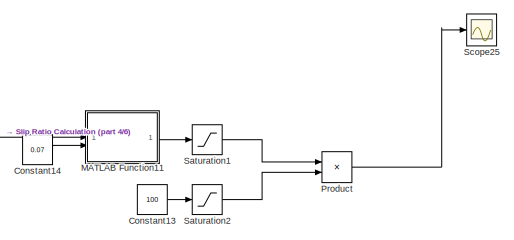
[diagram: root canvas - part 1/6, top right region]
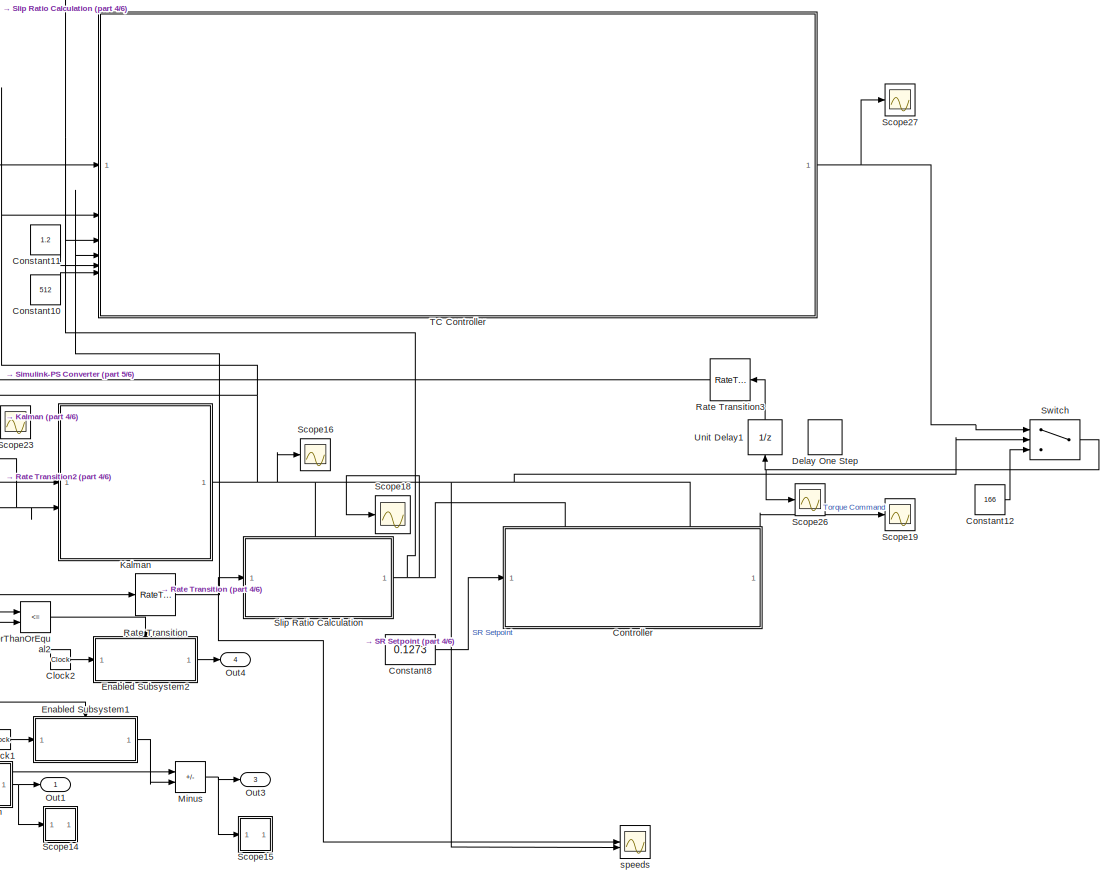
[diagram: root canvas - part 2/6, middle right region]
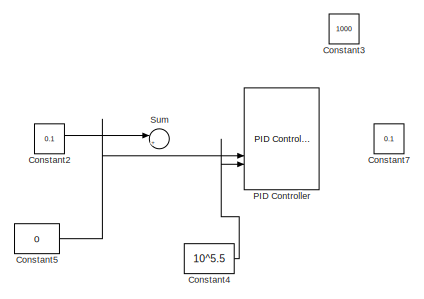
[diagram: root canvas - part 3/6, middle left region]
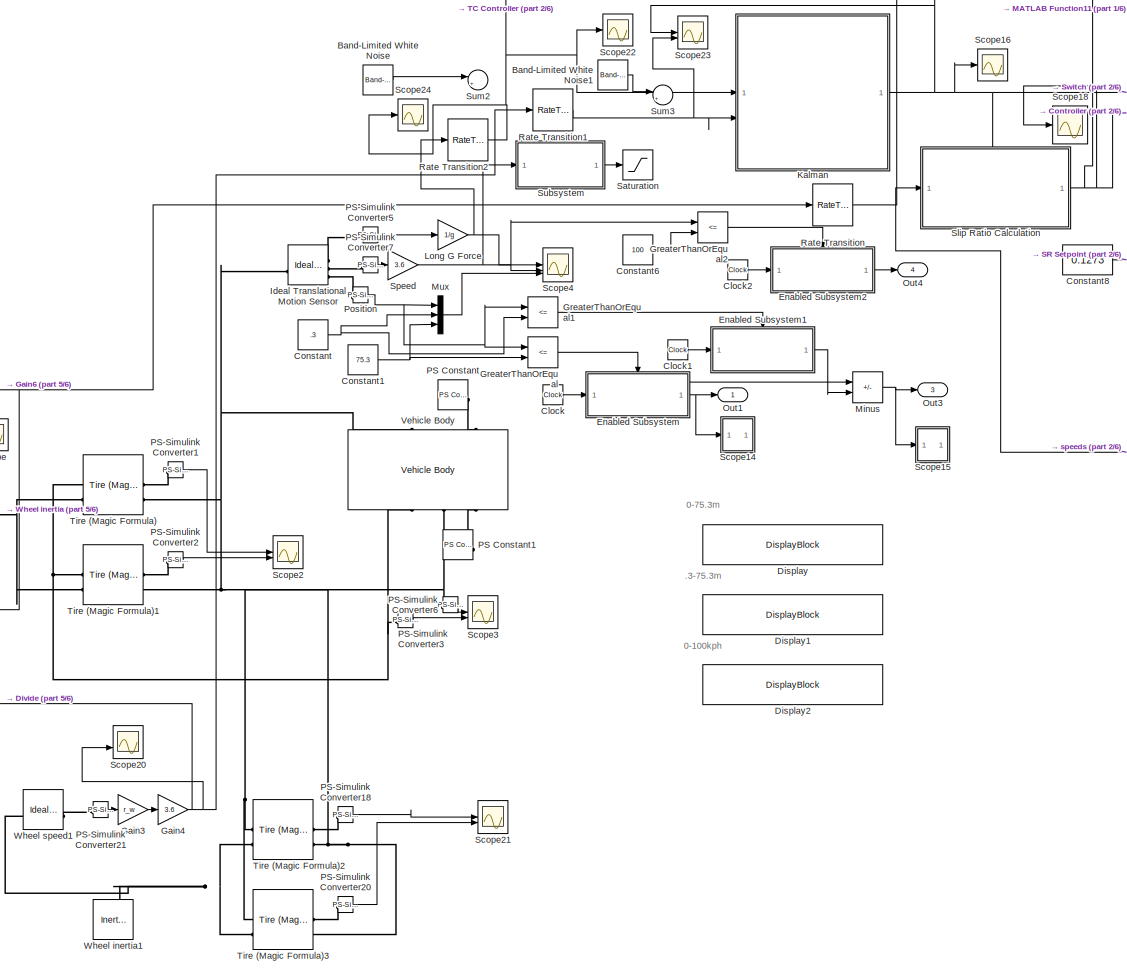
[diagram: root canvas - part 4/6, bottom right region]
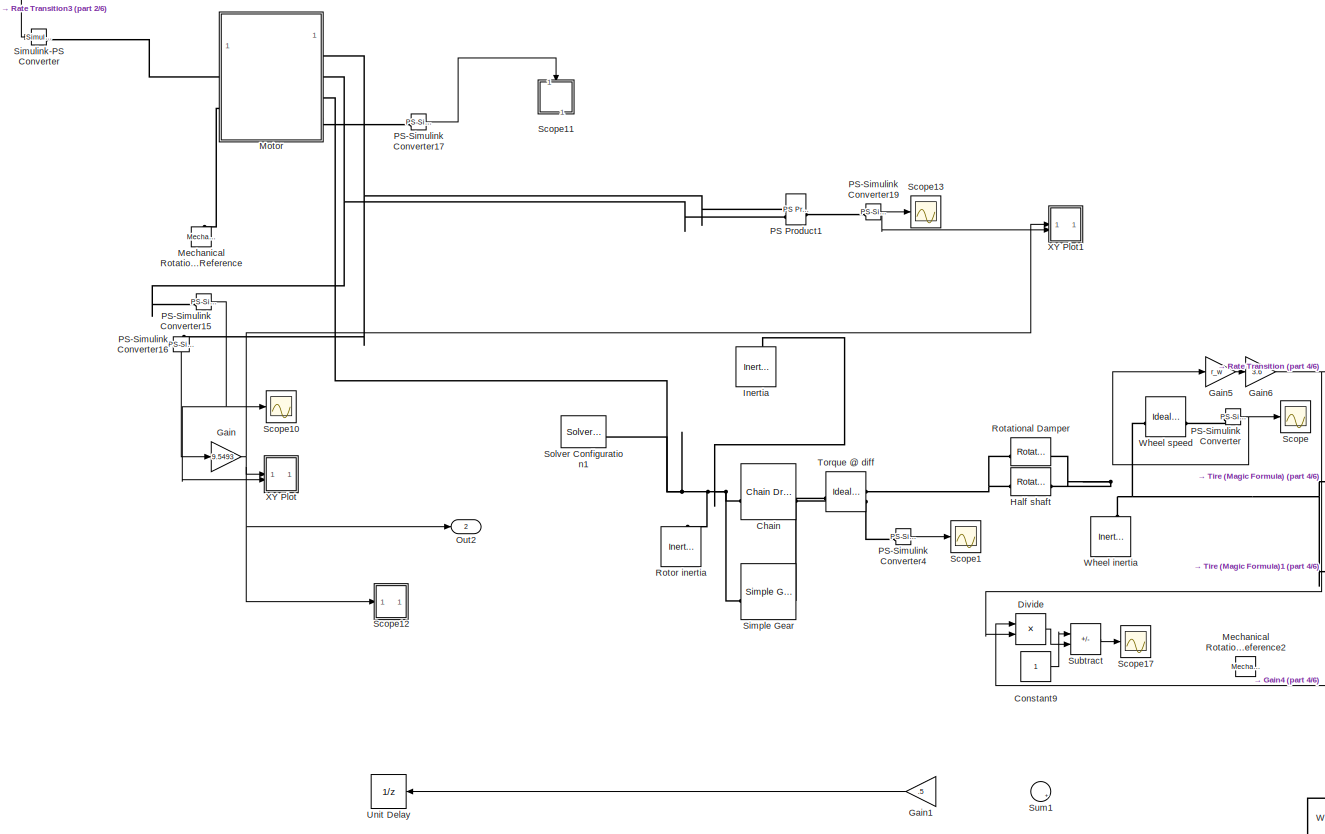
[diagram: root canvas - part 5/6, bottom center region]
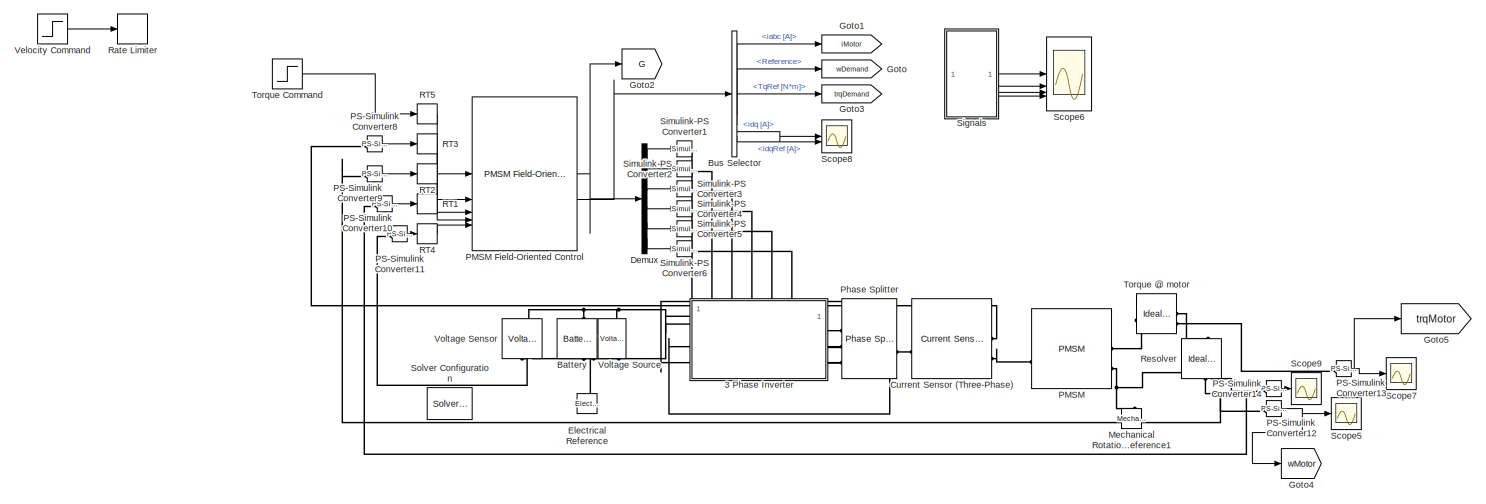
[diagram: root canvas - part 6/6, bottom left region]
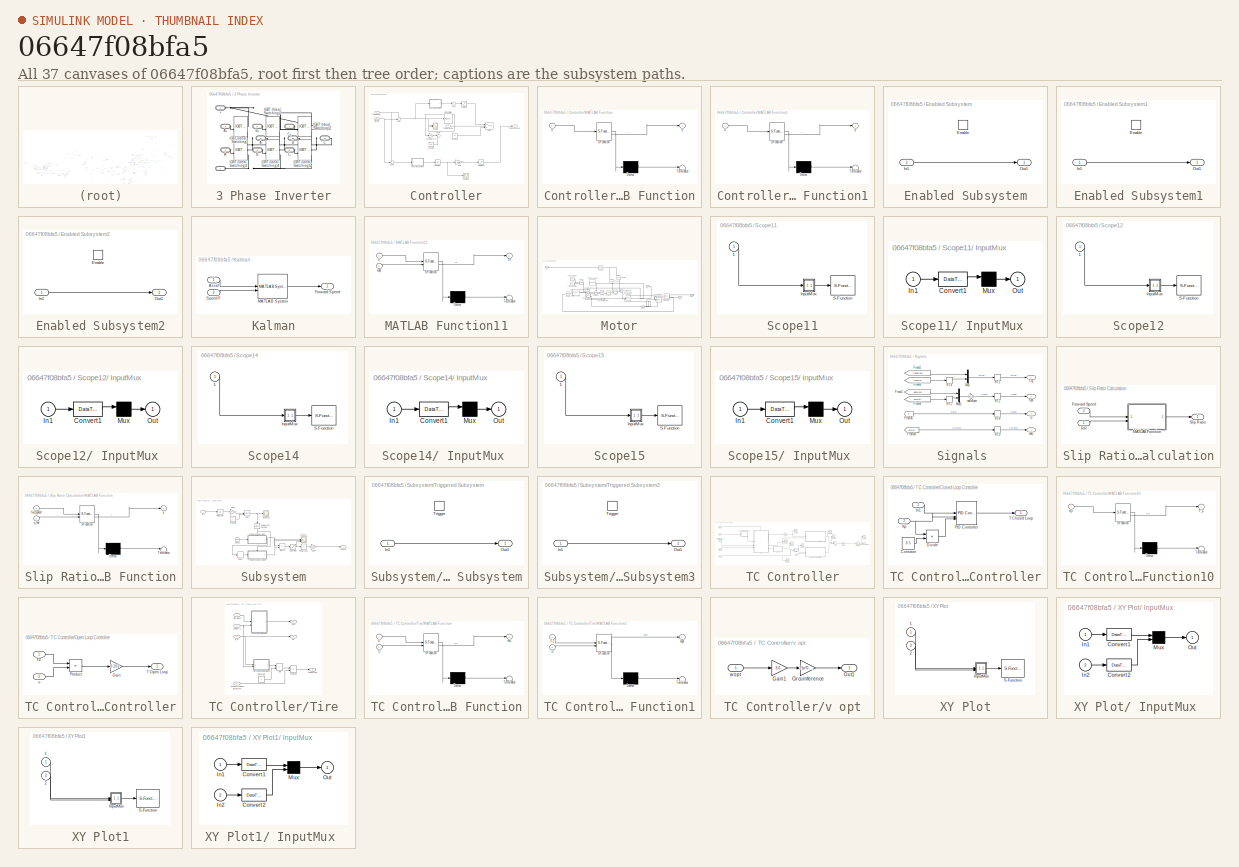
[diagram: thumbnail index - all 37 canvases of the model, root first then tree order]
MODEL slx_06647f08bfa5
KIND model
CONFIG AbsTol = auto
CONFIG EnableMultiTasking = off
CONFIG FixedStep = 0.002
CONFIG InitFcn = %% Vehicle Parameters\nm_v=316.163; % [kg] - Vehicle mass\ng=9.81; % [m/s^2] - Acceleration due to gravity\nF_v=m_v*g; % [N] - Weight\nv_init=0; %[m/s] Initial vehicle velocity\nl_base=1.53; % [m] - Length of vehicle wheelbase\nh=0.343; % [m] - Height of vehicle center of gravity (CG)\nl_f=0.737; % [m] - Distance of CG from front axle\nl_r=l_base-l_f; % [m] - Distance of CG from rear axle\n\n%% Motor and ge...<+2979ch>
CONFIG MaxStep = auto
CONFIG MinStep = auto
CONFIG RelTol = 1e-3
CONFIG SampleTimeConstraint = Unconstrained
CONFIG SolverName = VariableStepAuto
CONFIG StartTime = 0.0
CONFIG StopTime = 10
BLOCK [SubSystem] 3 Phase Inverter
  Commented = on
  PortSchema = {"entries":[{"content":{"sides":[{"content":{"connectorIds":["LConn1","LConn2"]},"type":"ConnectorPlacement.EquallySpacedRectSide","uuid":"d5022fbb-c3f6-461d-b974-1d2b620952fe"},{"content":{"connectorIds":["RConn1","RConn2","RConn3"],"side":"RIGHT"},"type":"ConnectorPlacement.EquallySpacedRectSide","uuid":"efc6d66e-0122-4901-b743-bd978a047c3f"},{"content":{"connectorIds":["LConn3","LConn4","LConn5...<+325ch>
BLOCK [PMIOPort] 3 Phase Inverter/+
  Side = Left
BLOCK [PMIOPort] 3 Phase Inverter/-
  Port = 2
  Side = Left
BLOCK [PMIOPort] 3 Phase Inverter/A
  Port = 9
  Side = Right
BLOCK [PMIOPort] 3 Phase Inverter/A+
  Port = 3
  Side = Left
BLOCK [PMIOPort] 3 Phase Inverter/A-
  Port = 4
  Side = Left
BLOCK [PMIOPort] 3 Phase Inverter/B
  Port = 10
  Side = Right
BLOCK [PMIOPort] 3 Phase Inverter/B+
  Port = 5
  Side = Left
BLOCK [PMIOPort] 3 Phase Inverter/B-
  Port = 6
  Side = Left
BLOCK [PMIOPort] 3 Phase Inverter/C
  Port = 11
  Side = Right
BLOCK [PMIOPort] 3 Phase Inverter/C+
  Port = 7
  Side = Left
BLOCK [PMIOPort] 3 Phase Inverter/C-
  Port = 8
  Side = Left
BLOCK [Reference] 3 Phase Inverter/IGBT (Ideal, Switching)  REF=ee_lib/Semiconductors &
Converters/IGBT
(Ideal,
Switching)
  SourceBlock = ee_lib/Semiconductors &\nConverters/IGBT\n(Ideal,\nSwitching)
  SourceType = IGBT\n(Ideal,\nSwitching)
BLOCK [Reference] 3 Phase Inverter/IGBT (Ideal, Switching)1  REF=ee_lib/Semiconductors &
Converters/IGBT
(Ideal,
Switching)
  SourceBlock = ee_lib/Semiconductors &\nConverters/IGBT\n(Ideal,\nSwitching)
  SourceType = IGBT\n(Ideal,\nSwitching)
BLOCK [Reference] 3 Phase Inverter/IGBT (Ideal, Switching)2  REF=ee_lib/Semiconductors &
Converters/IGBT
(Ideal,
Switching)
  SourceBlock = ee_lib/Semiconductors &\nConverters/IGBT\n(Ideal,\nSwitching)
  SourceType = IGBT\n(Ideal,\nSwitching)
BLOCK [Reference] 3 Phase Inverter/IGBT (Ideal, Switching)3  REF=ee_lib/Semiconductors &
Converters/IGBT
(Ideal,
Switching)
  SourceBlock = ee_lib/Semiconductors &\nConverters/IGBT\n(Ideal,\nSwitching)
  SourceType = IGBT\n(Ideal,\nSwitching)
BLOCK [Reference] 3 Phase Inverter/IGBT (Ideal, Switching)4  REF=ee_lib/Semiconductors &
Converters/IGBT
(Ideal,
Switching)
  SourceBlock = ee_lib/Semiconductors &\nConverters/IGBT\n(Ideal,\nSwitching)
  SourceType = IGBT\n(Ideal,\nSwitching)
BLOCK [Reference] 3 Phase Inverter/IGBT (Ideal, Switching)5  REF=ee_lib/Semiconductors &
Converters/IGBT
(Ideal,
Switching)
  SourceBlock = ee_lib/Semiconductors &\nConverters/IGBT\n(Ideal,\nSwitching)
  SourceType = IGBT\n(Ideal,\nSwitching)
BLOCK [Reference] Band-Limited White Noise  REF=simulink/Sources/Band-Limited
White Noise
  SourceBlock = simulink/Sources/Band-Limited\nWhite Noise
  SourceType = Band-Limited White Noise.
BLOCK [Reference] Band-Limited White Noise1  REF=simulink/Sources/Band-Limited
White Noise
  SourceBlock = simulink/Sources/Band-Limited\nWhite Noise
  SourceType = Band-Limited White Noise.
BLOCK [Reference] Battery  REF=batteryecm_lib/Battery
  Commented = on
  LibrarySourceBlock = ee_lib/Sources/Battery
  NameLocation = right
  SourceBlock = batteryecm_lib/Battery
  SourceType = Battery
BLOCK [BusSelector] Bus Selector
  Commented = on
  OutputSignals = iabc [A],Reference,TqRef [N*m],idq [A],idqRef [A]
BLOCK [Reference] Chain  REF=sdl_lib/Couplings & Drives/Chain Drive
  Commented = on
  SourceBlock = sdl_lib/Couplings & Drives/Chain Drive
  SourceType = Chain Drive
BLOCK [Clock] Clock
BLOCK [Clock] Clock1
BLOCK [Clock] Clock2
BLOCK [Constant] Constant
  Value = .3
BLOCK [Constant] Constant1
  Value = 75.3
BLOCK [Constant] Constant10
  Value = 512
BLOCK [Constant] Constant11
  Value = 1.2
BLOCK [Constant] Constant12
  Value = 166
BLOCK [Constant] Constant13
  Value = 100
BLOCK [Constant] Constant14
  Value = 0.07
BLOCK [Constant] Constant2
  SampleTime = .001
  Value = 0.1
BLOCK [Constant] Constant3
  Value = 1000
BLOCK [Constant] Constant4
  Value = 10^5.5
BLOCK [Constant] Constant5
  Value = 0
BLOCK [Constant] Constant6
  Value = 100
BLOCK [Constant] Constant7
  Value = 0.1
BLOCK [Constant] Constant8
  SampleTime = 0.002
  Value = 0.1273
BLOCK [Constant] Constant9
BLOCK [SubSystem] Controller
  PortSchema = {"entries":[{"content":{"sides":[{"content":{"connectorIds":["In1"]},"type":"ConnectorPlacement.EquallySpacedRectSide","uuid":"c0b03cac-8500-440b-9ad3-70bdbcbe41b3"},{"content":{"connectorIds":["Out1"],"side":"RIGHT"},"type":"ConnectorPlacement.EquallySpacedRectSide","uuid":"4e59df84-775e-4047-ac34-66ccc124485b"},{"content":{"connectorIds":["In2","In3"],"side":"TOP"},"type":"ConnectorPlacement.Equ...<+251ch>
BLOCK [Constant] Controller/Constant
  Value = 0.2
BLOCK [Constant] Controller/Constant1
  Value = 30
BLOCK [Inport] Controller/Forward Speed
  Port = 3
BLOCK [Gain] Controller/Gain
  Gain = 1000
BLOCK [Integrator] Controller/Integrator
BLOCK [Gain] Controller/K*gain (N*s^2)
  Gain = 0.5
BLOCK [SubSystem] Controller/MATLAB Function
  ErrorFcn = Stateflow.Translate.translate
  PermitHierarchicalResolution = ExplicitOnly
  SFBlockType = MATLAB Function
  TreatAsAtomicUnit = on
BLOCK [Demux] Controller/MATLAB Function/ Demux 
  Outputs = 1
BLOCK [S-Function] Controller/MATLAB Function/ SFunction 
  EnableBusSupport = on
  FunctionName = sf_sfun
  PortCounts = [1 2]
  SFcnIsStateOwnerBlock = off
  SFunctionDeploymentMode = off
  Tag = Stateflow S-Function 1
BLOCK [Terminator] Controller/MATLAB Function/ Terminator 
BLOCK [Inport] Controller/MATLAB Function/u
BLOCK [Outport] Controller/MATLAB Function/y
BLOCK [SubSystem] Controller/MATLAB Function1
  ErrorFcn = Stateflow.Translate.translate
  PermitHierarchicalResolution = ExplicitOnly
  SFBlockType = MATLAB Function
  TreatAsAtomicUnit = on
BLOCK [Demux] Controller/MATLAB Function1/ Demux 
  Outputs = 1
BLOCK [S-Function] Controller/MATLAB Function1/ SFunction 
  EnableBusSupport = on
  FunctionName = sf_sfun
  PortCounts = [1 2]
  SFcnIsStateOwnerBlock = off
  SFunctionDeploymentMode = off
  Tag = Stateflow S-Function 3
BLOCK [Terminator] Controller/MATLAB Function1/ Terminator 
BLOCK [Inport] Controller/MATLAB Function1/u
BLOCK [Outport] Controller/MATLAB Function1/y
BLOCK [Reference] Controller/PID Controller  REF=slpidlib/PID Controller
  LibrarySourceBlock = simulink/Continuous/PID Controller
  SourceBlock = slpidlib/PID Controller
  SourceType = PID 1dof
BLOCK [Inport] Controller/SR Setpoint
BLOCK [Saturate] Controller/Saturation
  LowerLimit = 0
  UpperLimit = 160
BLOCK [Saturate] Controller/Saturation1
  LowerLimit = 0
  UpperLimit = 160
BLOCK [Scope] Controller/Scope
  Floating = off
  NumInputPorts = 2
  ScopeSpecificationString = Simulink.scopes.TimeScopeBlockCfg('CurrentConfiguration', extmgr.ConfigurationSet(extmgr.Configuration('Core','General UI',true),extmgr.Configuration('Core','Source UI',true),extmgr.Configuration('Sources','WiredSimulink',true,'DataLoggingVariableName','ScopeData2'),extmgr.Configuration('Visuals','Time Domain',true,'SerializedDisplays',{struct('MinYLimReal','-0.42136','MaxYLimReal','0.69177','YLab...<+1573ch>
BLOCK [Scope] Controller/Scope1
  Floating = off
  NumInputPorts = 1
  ScopeSpecificationString = Simulink.scopes.TimeScopeBlockCfg('CurrentConfiguration', extmgr.ConfigurationSet(extmgr.Configuration('Core','General UI',true),extmgr.Configuration('Core','Source UI',true),extmgr.Configuration('Sources','WiredSimulink',true,'DataLoggingVariableName','ScopeData2'),extmgr.Configuration('Visuals','Time Domain',true,'SerializedDisplays',{struct('MinYLimReal','-0.61911','MaxYLimReal','5.572','YLabel...<+1450ch>
BLOCK [Inport] Controller/Slip Ratio
  Port = 2
BLOCK [Sum] Controller/Sum
  Inputs = +-|
BLOCK [Sum] Controller/Sum1
  Inputs = |++
BLOCK [Sum] Controller/Sum2
  Inputs = |++
BLOCK [Sum] Controller/Sum3
  Inputs = +-|
BLOCK [Switch] Controller/Switch
  Criteria = u2 > Threshold
  InputSameDT = off
  SaturateOnIntegerOverflow = off
  Threshold = 0.5
BLOCK [Outport] Controller/Torque Request
BLOCK [Reference] Current Sensor (Three-Phase)  REF=ee_lib/Sensors &
Transducers/Current Sensor
(Three-Phase)
  Commented = on
  SourceBlock = ee_lib/Sensors &\nTransducers/Current Sensor\n(Three-Phase)
  SourceType = Current Sensor\n(Three-Phase)
BLOCK [Delay] Delay One Step
  DelayLength = 1
  InputPortMap = u0
  NameLocation = right
BLOCK [Demux] Demux
  Commented = on
  Outputs = 6
BLOCK [DisplayBlock] Display
  LabelPosition = Hide
  Transparency = 1
BLOCK [DisplayBlock] Display1
  LabelPosition = Hide
  Transparency = 1
BLOCK [DisplayBlock] Display2
  LabelPosition = Hide
  Transparency = 1
BLOCK [Product] Divide
  Commented = on
  Inputs = */
BLOCK [Reference] Electrical Reference  REF=fl_lib/Electrical/Electrical Elements/Electrical Reference
  Commented = on
  NameLocation = right
  SourceBlock = fl_lib/Electrical/Electrical Elements/Electrical Reference
  SourceType = Electrical Reference
BLOCK [SubSystem] Enabled Subsystem
  TreatAsAtomicUnit = on
BLOCK [EnablePort] Enabled Subsystem/Enable
BLOCK [Inport] Enabled Subsystem/In1
BLOCK [Outport] Enabled Subsystem/Out1
BLOCK [SubSystem] Enabled Subsystem1
  TreatAsAtomicUnit = on
BLOCK [EnablePort] Enabled Subsystem1/Enable
BLOCK [Inport] Enabled Subsystem1/In1
BLOCK [Outport] Enabled Subsystem1/Out1
BLOCK [SubSystem] Enabled Subsystem2
  TreatAsAtomicUnit = on
BLOCK [EnablePort] Enabled Subsystem2/Enable
BLOCK [Inport] Enabled Subsystem2/In1
BLOCK [Outport] Enabled Subsystem2/Out1
BLOCK [Gain] Gain
  Gain = 9.5493
BLOCK [Gain] Gain1
  Gain = .5
  NameLocation = top
BLOCK [Gain] Gain3
  Gain = r_w
BLOCK [Gain] Gain4
  Gain = 3.6
BLOCK [Gain] Gain5
  Gain = r_w
BLOCK [Gain] Gain6
  Gain = 3.6
BLOCK [Goto] Goto
  Commented = on
  GotoTag = wDemand
  NameLocation = top
  TagVisibility = global
BLOCK [Goto] Goto1
  Commented = on
  GotoTag = iMotor
  NameLocation = top
  TagVisibility = global
BLOCK [Goto] Goto2
  Commented = on
  GotoTag = G
  TagVisibility = global
BLOCK [Goto] Goto3
  Commented = on
  GotoTag = trqDemand
  NameLocation = top
  TagVisibility = global
BLOCK [Goto] Goto4
  Commented = on
  GotoTag = wMotor
  TagVisibility = global
BLOCK [Goto] Goto5
  Commented = on
  GotoTag = trqMotor
  TagVisibility = global
BLOCK [RelationalOperator] GreaterThanOrEqual
  InputSameDT = off
  Operator = <=
  OutDataTypeStr = boolean
  RndMeth = Simplest
BLOCK [RelationalOperator] GreaterThanOrEqual1
  InputSameDT = off
  Operator = <=
  OutDataTypeStr = boolean
  RndMeth = Simplest
BLOCK [RelationalOperator] GreaterThanOrEqual2
  InputSameDT = off
  Operator = <=
  OutDataTypeStr = boolean
  RndMeth = Simplest
BLOCK [Reference] Half shaft  REF=fl_lib/Mechanical/Rotational Elements/Rotational Spring
  Commented = through
  SourceBlock = fl_lib/Mechanical/Rotational Elements/Rotational Spring
  SourceType = Rotational Spring
BLOCK [Reference] Ideal Translational Motion Sensor  REF=fl_lib/Mechanical/Mechanical Sensors/Ideal Translational
Motion Sensor
  SourceBlock = fl_lib/Mechanical/Mechanical Sensors/Ideal Translational\nMotion Sensor
  SourceType = Ideal Translational\nMotion Sensor
BLOCK [Reference] Inertia  REF=fl_lib/Mechanical/Rotational Elements/Inertia
  Commented = on
  NameLocation = right
  SourceBlock = fl_lib/Mechanical/Rotational Elements/Inertia
  SourceType = Inertia
BLOCK [SubSystem] Kalman
BLOCK [Inport] Kalman/Accel
BLOCK [Outport] Kalman/Forward Speed
BLOCK [MATLABSystem] Kalman/MATLAB System
  MaskDisplay = disp('Kalman_Filter_Simulink');\nport_label('input',1,'a');\nport_label('input',2,'v_f');\nport_label('output',1,'v');
  MaskType = Kalman_Filter_Simulink
  SimulateUsing = Code generation
  System = Kalman_Filter_Simulink
  qgain = 1
BLOCK [Inport] Kalman/Speed F
  Port = 2
BLOCK [Gain] Long G Force
  Gain = 1/g
BLOCK [SubSystem] MATLAB Function11
  ErrorFcn = Stateflow.Translate.translate
  PermitHierarchicalResolution = ExplicitOnly
  SFBlockType = MATLAB Function
  TreatAsAtomicUnit = on
BLOCK [Demux] MATLAB Function11/ Demux 
  Outputs = 1
BLOCK [S-Function] MATLAB Function11/ SFunction 
  EnableBusSupport = on
  FunctionName = sf_sfun
  PortCounts = [2 2]
  SFcnIsStateOwnerBlock = off
  SFunctionDeploymentMode = off
  Tag = Stateflow S-Function 20
BLOCK [Terminator] MATLAB Function11/ Terminator 
BLOCK [Outport] MATLAB Function11/TF
BLOCK [Inport] MATLAB Function11/k
BLOCK [Inport] MATLAB Function11/kopt
  Port = 2
BLOCK [Reference] Mechanical Rotational Reference  REF=fl_lib/Mechanical/Rotational Elements/Mechanical
Rotational Reference
  NameLocation = right
  SourceBlock = fl_lib/Mechanical/Rotational Elements/Mechanical\nRotational Reference
  SourceType = Mechanical\nRotational Reference
BLOCK [Reference] Mechanical Rotational Reference1  REF=fl_lib/Mechanical/Rotational Elements/Mechanical
Rotational Reference
  Commented = on
  NameLocation = right
  SourceBlock = fl_lib/Mechanical/Rotational Elements/Mechanical\nRotational Reference
  SourceType = Mechanical\nRotational Reference
BLOCK [Reference] Mechanical Rotational Reference2  REF=fl_lib/Mechanical/Rotational Elements/Mechanical
Rotational Reference
  NameLocation = right
  SourceBlock = fl_lib/Mechanical/Rotational Elements/Mechanical\nRotational Reference
  SourceType = Mechanical\nRotational Reference
BLOCK [Sum] Minus
  IconShape = rectangular
  Inputs = +-
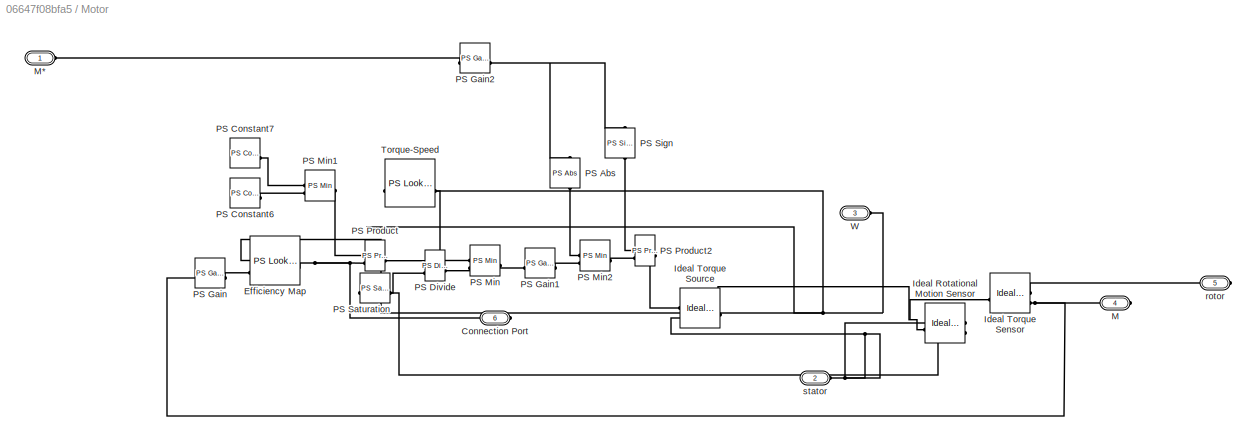
BLOCK [SubSystem] Motor
BLOCK [PMIOPort] Motor/Connection Port
  NameLocation = top
  Port = 6
  Side = Right
BLOCK [Reference] Motor/Efficiency Map  REF=fl_lib/Physical Signals/Lookup Tables/PS Lookup Table (2D)
  SourceBlock = fl_lib/Physical Signals/Lookup Tables/PS Lookup Table (2D)
  SourceType = PS Lookup Table (2D)
BLOCK [Reference] Motor/Ideal Rotational Motion Sensor  REF=fl_lib/Mechanical/Mechanical Sensors/Ideal Rotational
Motion Sensor
  NameLocation = top
  SourceBlock = fl_lib/Mechanical/Mechanical Sensors/Ideal Rotational\nMotion Sensor
  SourceType = Ideal Rotational\nMotion Sensor
BLOCK [Reference] Motor/Ideal Torque Sensor  REF=fl_lib/Mechanical/Mechanical Sensors/Ideal Torque Sensor
  SourceBlock = fl_lib/Mechanical/Mechanical Sensors/Ideal Torque Sensor
  SourceType = Ideal Torque Sensor
BLOCK [Reference] Motor/Ideal Torque Source  REF=fl_lib/Mechanical/Mechanical Sources/Ideal Torque Source
  SourceBlock = fl_lib/Mechanical/Mechanical Sources/Ideal Torque Source
  SourceType = Ideal Torque Source
BLOCK [PMIOPort] Motor/M
  Port = 4
  Side = Right
BLOCK [PMIOPort] Motor/M*
  Side = Left
BLOCK [Reference] Motor/PS Abs  REF=fl_lib/Physical Signals/Nonlinear Operators/PS Abs
  NameLocation = left
  SourceBlock = fl_lib/Physical Signals/Nonlinear Operators/PS Abs
  SourceType = PS Abs
BLOCK [Reference] Motor/PS Constant6  REF=fl_lib/Physical Signals/Sources/PS Constant
  SourceBlock = fl_lib/Physical Signals/Sources/PS Constant
  SourceType = PS Constant
BLOCK [Reference] Motor/PS Constant7  REF=fl_lib/Physical Signals/Sources/PS Constant
  SourceBlock = fl_lib/Physical Signals/Sources/PS Constant
  SourceType = PS Constant
BLOCK [Reference] Motor/PS Divide  REF=fl_lib/Physical Signals/Functions/PS Divide
  SourceBlock = fl_lib/Physical Signals/Functions/PS Divide
  SourceType = PS Divide
BLOCK [Reference] Motor/PS Gain  REF=fl_lib/Physical Signals/Functions/PS Gain
  SourceBlock = fl_lib/Physical Signals/Functions/PS Gain
  SourceType = PS Gain
BLOCK [Reference] Motor/PS Gain1  REF=fl_lib/Physical Signals/Functions/PS Gain
  SourceBlock = fl_lib/Physical Signals/Functions/PS Gain
  SourceType = PS Gain
BLOCK [Reference] Motor/PS Gain2  REF=fl_lib/Physical Signals/Functions/PS Gain
  SourceBlock = fl_lib/Physical Signals/Functions/PS Gain
  SourceType = PS Gain
BLOCK [Reference] Motor/PS Min  REF=fl_lib/Physical Signals/Nonlinear Operators/PS Min
  SourceBlock = fl_lib/Physical Signals/Nonlinear Operators/PS Min
  SourceType = PS Min
BLOCK [Reference] Motor/PS Min1  REF=fl_lib/Physical Signals/Nonlinear Operators/PS Min
  SourceBlock = fl_lib/Physical Signals/Nonlinear Operators/PS Min
  SourceType = PS Min
BLOCK [Reference] Motor/PS Min2  REF=fl_lib/Physical Signals/Nonlinear Operators/PS Min
  SourceBlock = fl_lib/Physical Signals/Nonlinear Operators/PS Min
  SourceType = PS Min
BLOCK [Reference] Motor/PS Product  REF=fl_lib/Physical Signals/Functions/PS Product
  SourceBlock = fl_lib/Physical Signals/Functions/PS Product
  SourceType = PS Product
BLOCK [Reference] Motor/PS Product2  REF=fl_lib/Physical Signals/Functions/PS Product
  SourceBlock = fl_lib/Physical Signals/Functions/PS Product
  SourceType = PS Product
BLOCK [Reference] Motor/PS Saturation  REF=fl_lib/Physical Signals/Nonlinear Operators/PS Saturation
  SourceBlock = fl_lib/Physical Signals/Nonlinear Operators/PS Saturation
  SourceType = PS Saturation
BLOCK [Reference] Motor/PS Sign  REF=fl_lib/Physical Signals/Nonlinear Operators/PS Sign
  NameLocation = left
  SourceBlock = fl_lib/Physical Signals/Nonlinear Operators/PS Sign
  SourceType = PS Sign
BLOCK [Reference] Motor/Torque-Speed  REF=fl_lib/Physical Signals/Lookup Tables/PS Lookup Table (1D)
  SourceBlock = fl_lib/Physical Signals/Lookup Tables/PS Lookup Table (1D)
  SourceType = PS Lookup Table (1D)
BLOCK [PMIOPort] Motor/W
  Port = 3
  Side = Right
BLOCK [PMIOPort] Motor/rotor
  Port = 5
  Side = Right
BLOCK [PMIOPort] Motor/stator
  Port = 2
  Side = Left
BLOCK [Mux] Mux
  DisplayOption = bar
  Inputs = 3
BLOCK [Outport] Out1
BLOCK [Outport] Out2
  Port = 2
BLOCK [Outport] Out3
  Port = 3
BLOCK [Outport] Out4
  Port = 4
BLOCK [Reference] PID Controller  REF=slpidlib/PID Controller
  LibrarySourceBlock = simulink/Continuous/PID Controller
  SourceBlock = slpidlib/PID Controller
  SourceType = PID 1dof
BLOCK [Reference] PMSM  REF=ee_lib/Electromechanical/Permanent Magnet/PMSM
  Commented = on
  SourceBlock = ee_lib/Electromechanical/Permanent Magnet/PMSM
  SourceType = PMSM
BLOCK [Reference] PMSM Field-Oriented Control  REF=eePmsmFieldOrientedControl/PMSM Field-Oriented
Control
  Commented = on
  LibrarySourceBlock = ee_sl_lib/PMSM Control/PMSM Field-Oriented\nControl
  SourceBlock = eePmsmFieldOrientedControl/PMSM Field-Oriented\nControl
  SourceType = PMSM Field-Oriented Control
BLOCK [Reference] PS Constant  REF=fl_lib/Physical Signals/Sources/PS Constant
  SourceBlock = fl_lib/Physical Signals/Sources/PS Constant
  SourceType = PS Constant
BLOCK [Reference] PS Constant1  REF=fl_lib/Physical Signals/Sources/PS Constant
  SourceBlock = fl_lib/Physical Signals/Sources/PS Constant
  SourceType = PS Constant
BLOCK [Reference] PS Product1  REF=fl_lib/Physical Signals/Functions/PS Product
  SourceBlock = fl_lib/Physical Signals/Functions/PS Product
  SourceType = PS Product
BLOCK [Reference] PS-Simulink Converter  REF=nesl_utility/PS-Simulink
Converter
  SourceBlock = nesl_utility/PS-Simulink\nConverter
  SourceType = PS-Simulink\nConverter
BLOCK [Reference] PS-Simulink Converter1  REF=nesl_utility/PS-Simulink
Converter
  SourceBlock = nesl_utility/PS-Simulink\nConverter
  SourceType = PS-Simulink\nConverter
BLOCK [Reference] PS-Simulink Converter10  REF=nesl_utility/PS-Simulink
Converter
  Commented = on
  SourceBlock = nesl_utility/PS-Simulink\nConverter
  SourceType = PS-Simulink\nConverter
BLOCK [Reference] PS-Simulink Converter11  REF=nesl_utility/PS-Simulink
Converter
  Commented = on
  SourceBlock = nesl_utility/PS-Simulink\nConverter
  SourceType = PS-Simulink\nConverter
BLOCK [Reference] PS-Simulink Converter12  REF=nesl_utility/PS-Simulink
Converter
  Commented = on
  SourceBlock = nesl_utility/PS-Simulink\nConverter
  SourceType = PS-Simulink\nConverter
BLOCK [Reference] PS-Simulink Converter13  REF=nesl_utility/PS-Simulink
Converter
  Commented = on
  SourceBlock = nesl_utility/PS-Simulink\nConverter
  SourceType = PS-Simulink\nConverter
BLOCK [Reference] PS-Simulink Converter14  REF=nesl_utility/PS-Simulink
Converter
  Commented = on
  SourceBlock = nesl_utility/PS-Simulink\nConverter
  SourceType = PS-Simulink\nConverter
BLOCK [Reference] PS-Simulink Converter15  REF=nesl_utility/PS-Simulink
Converter
  SourceBlock = nesl_utility/PS-Simulink\nConverter
  SourceType = PS-Simulink\nConverter
BLOCK [Reference] PS-Simulink Converter16  REF=nesl_utility/PS-Simulink
Converter
  NameLocation = left
  SourceBlock = nesl_utility/PS-Simulink\nConverter
  SourceType = PS-Simulink\nConverter
BLOCK [Reference] PS-Simulink Converter17  REF=nesl_utility/PS-Simulink
Converter
  SourceBlock = nesl_utility/PS-Simulink\nConverter
  SourceType = PS-Simulink\nConverter
BLOCK [Reference] PS-Simulink Converter18  REF=nesl_utility/PS-Simulink
Converter
  SourceBlock = nesl_utility/PS-Simulink\nConverter
  SourceType = PS-Simulink\nConverter
BLOCK [Reference] PS-Simulink Converter19  REF=nesl_utility/PS-Simulink
Converter
  SourceBlock = nesl_utility/PS-Simulink\nConverter
  SourceType = PS-Simulink\nConverter
BLOCK [Reference] PS-Simulink Converter2  REF=nesl_utility/PS-Simulink
Converter
  SourceBlock = nesl_utility/PS-Simulink\nConverter
  SourceType = PS-Simulink\nConverter
BLOCK [Reference] PS-Simulink Converter20  REF=nesl_utility/PS-Simulink
Converter
  SourceBlock = nesl_utility/PS-Simulink\nConverter
  SourceType = PS-Simulink\nConverter
BLOCK [Reference] PS-Simulink Converter21  REF=nesl_utility/PS-Simulink
Converter
  SourceBlock = nesl_utility/PS-Simulink\nConverter
  SourceType = PS-Simulink\nConverter
BLOCK [Reference] PS-Simulink Converter3  REF=nesl_utility/PS-Simulink
Converter
  SourceBlock = nesl_utility/PS-Simulink\nConverter
  SourceType = PS-Simulink\nConverter
BLOCK [Reference] PS-Simulink Converter4  REF=nesl_utility/PS-Simulink
Converter
  SourceBlock = nesl_utility/PS-Simulink\nConverter
  SourceType = PS-Simulink\nConverter
BLOCK [Reference] PS-Simulink Converter5  REF=nesl_utility/PS-Simulink
Converter
  SourceBlock = nesl_utility/PS-Simulink\nConverter
  SourceType = PS-Simulink\nConverter
BLOCK [Reference] PS-Simulink Converter6  REF=nesl_utility/PS-Simulink
Converter
  SourceBlock = nesl_utility/PS-Simulink\nConverter
  SourceType = PS-Simulink\nConverter
BLOCK [Reference] PS-Simulink Converter7  REF=nesl_utility/PS-Simulink
Converter
  SourceBlock = nesl_utility/PS-Simulink\nConverter
  SourceType = PS-Simulink\nConverter
BLOCK [Reference] PS-Simulink Converter8  REF=nesl_utility/PS-Simulink
Converter
  Commented = on
  SourceBlock = nesl_utility/PS-Simulink\nConverter
  SourceType = PS-Simulink\nConverter
BLOCK [Reference] PS-Simulink Converter9  REF=nesl_utility/PS-Simulink
Converter
  Commented = on
  SourceBlock = nesl_utility/PS-Simulink\nConverter
  SourceType = PS-Simulink\nConverter
BLOCK [Reference] Phase Splitter  REF=ee_lib/Connectors &
References/Phase Splitter
  Commented = on
  SourceBlock = ee_lib/Connectors &\nReferences/Phase Splitter
  SourceType = Phase Splitter
BLOCK [Reference] Position  REF=nesl_utility/PS-Simulink
Converter
  SourceBlock = nesl_utility/PS-Simulink\nConverter
  SourceType = PS-Simulink\nConverter
BLOCK [Product] Product
BLOCK [RateTransition] RT1
  Commented = on
  OutPortSampleTime = Tsc
BLOCK [RateTransition] RT2
  Commented = on
  OutPortSampleTime = Tsc
BLOCK [RateTransition] RT3
  Commented = on
  OutPortSampleTime = Tsc
BLOCK [RateTransition] RT4
  Commented = on
  OutPortSampleTime = Tsc
BLOCK [RateTransition] RT5
  Commented = on
  OutPortSampleTime = Tsc
BLOCK [RateLimiter] Rate Limiter
  Commented = on
  FallingSlewLimit = -0.7*motor.peak_tq / motor.J
  RisingSlewLimit = 0.7*motor.peak_tq / motor.J
  SampleTimeMode = inherited
BLOCK [RateTransition] Rate Transition
  OutPortSampleTime = 0.002
BLOCK [RateTransition] Rate Transition1
  OutPortSampleTime = 0.002
BLOCK [RateTransition] Rate Transition2
  OutPortSampleTime = 0.002
BLOCK [RateTransition] Rate Transition3
  NameLocation = top
BLOCK [Reference] Resolver  REF=fl_lib/Mechanical/Mechanical Sensors/Ideal Rotational
Motion Sensor
  Commented = on
  NameLocation = left
  SourceBlock = fl_lib/Mechanical/Mechanical Sensors/Ideal Rotational\nMotion Sensor
  SourceType = Ideal Rotational\nMotion Sensor
BLOCK [Reference] Rotational Damper  REF=fl_lib/Mechanical/Rotational Elements/Rotational Damper
  Commented = on
  SourceBlock = fl_lib/Mechanical/Rotational Elements/Rotational Damper
  SourceType = Rotational Damper
BLOCK [Reference] Rotor inertia  REF=fl_lib/Mechanical/Rotational Elements/Inertia
  NameLocation = right
  SourceBlock = fl_lib/Mechanical/Rotational Elements/Inertia
  SourceType = Inertia
BLOCK [Saturate] Saturation
  LowerLimit = -200
  UpperLimit = 200
BLOCK [Saturate] Saturation1
  LowerLimit = .1
  UpperLimit = 1
BLOCK [Saturate] Saturation2
  LowerLimit = 0
  UpperLimit = 166
BLOCK [Scope] Scope
  Floating = off
  NumInputPorts = 1
  ScopeSpecificationString = Simulink.scopes.TimeScopeBlockCfg('CurrentConfiguration', extmgr.ConfigurationSet(extmgr.Configuration('Core','General UI',true),extmgr.Configuration('Core','Source UI',true),extmgr.Configuration('Sources','WiredSimulink',true),extmgr.Configuration('Visuals','Time Domain',true,'SerializedDisplays',{struct('MinYLimReal','-0.01607','MaxYLimReal','0.27206','YLabelReal','','MinYLimMag','0.00000','MaxY...<+1591ch>
BLOCK [Scope] Scope1
  Floating = off
  NumInputPorts = 1
  ScopeSpecificationString = Simulink.scopes.TimeScopeBlockCfg('CurrentConfiguration', extmgr.ConfigurationSet(extmgr.Configuration('Core','General UI',true),extmgr.Configuration('Core','Source UI',true),extmgr.Configuration('Sources','WiredSimulink',true,'DataLoggingVariableName','ScopeData2'),extmgr.Configuration('Visuals','Time Domain',true,'SerializedDisplays',{struct('MinYLimReal','-25.31849','MaxYLimReal','1030.16672','...<+1631ch>
BLOCK [Scope] Scope10
  Floating = off
  NumInputPorts = 1
  ScopeSpecificationString = Simulink.scopes.TimeScopeBlockCfg('CurrentConfiguration', extmgr.ConfigurationSet(extmgr.Configuration('Core','General UI',true),extmgr.Configuration('Core','Source UI',true),extmgr.Configuration('Sources','WiredSimulink',true,'DataLoggingVariableName','ScopeData1'),extmgr.Configuration('Visuals','Time Domain',true,'SerializedDisplays',{struct('MinYLimReal','-1.15538','MaxYLimReal','144.34442','YL...<+1552ch>
BLOCK [SubSystem] Scope11
  CopyFcn = plecs('sl', 303);
  DeleteFcn = plecs('sl', 305);
  DestroyFcn = plecs('sl', 307);
  ErrorFcn = plerrorfcn
  InitFcn = plecs('sl', 314);
  LoadFcn = plecs('sl', 300);
  NameChangeFcn = plecs('sl', 310);
  NameLocation = left
  OpenFcn = plecs('sl', 302);
  PreSaveFcn = plecs('sl', 311);
  StartFcn = plecs('sl', 308);
  StopFcn = plecs('sl', 309);
  UndoDeleteFcn = plecs('sl', 306);
BLOCK [SubSystem] Scope11/ InputMux 
BLOCK [DataTypeConversion] Scope11/ InputMux /Convert1
BLOCK [Inport] Scope11/ InputMux /In1
BLOCK [Mux] Scope11/ InputMux /Mux
  Inputs = 1
BLOCK [Outport] Scope11/ InputMux /Out
BLOCK [S-Function] Scope11/ S-Function 
  EnableBusSupport = off
  FunctionName = plecs
  SFcnIsStateOwnerBlock = off
  SFunctionDeploymentMode = off
BLOCK [Inport] Scope11/1
BLOCK [SubSystem] Scope12
  CopyFcn = plecs('sl', 303);
  DeleteFcn = plecs('sl', 305);
  DestroyFcn = plecs('sl', 307);
  ErrorFcn = plerrorfcn
  InitFcn = plecs('sl', 314);
  LoadFcn = plecs('sl', 300);
  NameChangeFcn = plecs('sl', 310);
  OpenFcn = plecs('sl', 302);
  PreSaveFcn = plecs('sl', 311);
  StartFcn = plecs('sl', 308);
  StopFcn = plecs('sl', 309);
  UndoDeleteFcn = plecs('sl', 306);
BLOCK [SubSystem] Scope12/ InputMux 
BLOCK [DataTypeConversion] Scope12/ InputMux /Convert1
BLOCK [Inport] Scope12/ InputMux /In1
BLOCK [Mux] Scope12/ InputMux /Mux
  Inputs = 1
BLOCK [Outport] Scope12/ InputMux /Out
BLOCK [S-Function] Scope12/ S-Function 
  EnableBusSupport = off
  FunctionName = plecs
  SFcnIsStateOwnerBlock = off
  SFunctionDeploymentMode = off
BLOCK [Inport] Scope12/1
BLOCK [Scope] Scope13
  Floating = off
  NumInputPorts = 1
  ScopeSpecificationString = Simulink.scopes.TimeScopeBlockCfg('CurrentConfiguration', extmgr.ConfigurationSet(extmgr.Configuration('Core','General UI',true),extmgr.Configuration('Core','Source UI',true),extmgr.Configuration('Sources','WiredSimulink',true,'DataLoggingVariableName','ScopeData1'),extmgr.Configuration('Visuals','Time Domain',true,'SerializedDisplays',{struct('MinYLimReal','-0.83017','MaxYLimReal','7.47152','YLab...<+1539ch>
BLOCK [SubSystem] Scope14
  CopyFcn = plecs('sl', 303);
  DeleteFcn = plecs('sl', 305);
  DestroyFcn = plecs('sl', 307);
  ErrorFcn = plerrorfcn
  InitFcn = plecs('sl', 314);
  LoadFcn = plecs('sl', 300);
  NameChangeFcn = plecs('sl', 310);
  OpenFcn = plecs('sl', 302);
  PreSaveFcn = plecs('sl', 311);
  StartFcn = plecs('sl', 308);
  StopFcn = plecs('sl', 309);
  UndoDeleteFcn = plecs('sl', 306);
BLOCK [SubSystem] Scope14/ InputMux 
BLOCK [DataTypeConversion] Scope14/ InputMux /Convert1
BLOCK [Inport] Scope14/ InputMux /In1
BLOCK [Mux] Scope14/ InputMux /Mux
  Inputs = 1
BLOCK [Outport] Scope14/ InputMux /Out
BLOCK [S-Function] Scope14/ S-Function 
  EnableBusSupport = off
  FunctionName = plecs
  SFcnIsStateOwnerBlock = off
  SFunctionDeploymentMode = off
BLOCK [Inport] Scope14/1
BLOCK [SubSystem] Scope15
  CopyFcn = plecs('sl', 303);
  DeleteFcn = plecs('sl', 305);
  DestroyFcn = plecs('sl', 307);
  ErrorFcn = plerrorfcn
  InitFcn = plecs('sl', 314);
  LoadFcn = plecs('sl', 300);
  NameChangeFcn = plecs('sl', 310);
  OpenFcn = plecs('sl', 302);
  PreSaveFcn = plecs('sl', 311);
  StartFcn = plecs('sl', 308);
  StopFcn = plecs('sl', 309);
  UndoDeleteFcn = plecs('sl', 306);
BLOCK [SubSystem] Scope15/ InputMux 
BLOCK [DataTypeConversion] Scope15/ InputMux /Convert1
BLOCK [Inport] Scope15/ InputMux /In1
BLOCK [Mux] Scope15/ InputMux /Mux
  Inputs = 1
BLOCK [Outport] Scope15/ InputMux /Out
BLOCK [S-Function] Scope15/ S-Function 
  EnableBusSupport = off
  FunctionName = plecs
  SFcnIsStateOwnerBlock = off
  SFunctionDeploymentMode = off
BLOCK [Inport] Scope15/1
BLOCK [Scope] Scope16
  Floating = off
  NumInputPorts = 1
  ScopeSpecificationString = Simulink.scopes.TimeScopeBlockCfg('CurrentConfiguration', extmgr.ConfigurationSet(extmgr.Configuration('Core','General UI',true),extmgr.Configuration('Core','Source UI',true),extmgr.Configuration('Sources','WiredSimulink',true,'DataLoggingVariableName','ScopeData1'),extmgr.Configuration('Visuals','Time Domain',true,'SerializedDisplays',{struct('MinYLimReal','-0.14605','MaxYLimReal','0.27048','YLab...<+1527ch>
BLOCK [Scope] Scope17
  Floating = off
  NumInputPorts = 1
  ScopeSpecificationString = Simulink.scopes.TimeScopeBlockCfg('CurrentConfiguration', extmgr.ConfigurationSet(extmgr.Configuration('Core','General UI',true),extmgr.Configuration('Core','Source UI',true),extmgr.Configuration('Sources','WiredSimulink',true,'DataLoggingVariableName','ScopeData1'),extmgr.Configuration('Visuals','Time Domain',true,'SerializedDisplays',{struct('MinYLimReal','-0.12491','MaxYLimReal','1.12499','YLab...<+1500ch>
BLOCK [Scope] Scope18
  Floating = off
  NumInputPorts = 3
  ScopeSpecificationString = Simulink.scopes.TimeScopeBlockCfg('CurrentConfiguration', extmgr.ConfigurationSet(extmgr.Configuration('Core','General UI',true),extmgr.Configuration('Core','Source UI',true),extmgr.Configuration('Sources','WiredSimulink',true,'DataLoggingVariableName','ScopeData3'),extmgr.Configuration('Visuals','Time Domain',true,'SerializedDisplays',{struct('MinYLimReal','-0.05113','MaxYLimReal','0.14678','YLab...<+1566ch>
BLOCK [Scope] Scope19
  Floating = off
  NumInputPorts = 1
  ScopeSpecificationString = Simulink.scopes.TimeScopeBlockCfg('CurrentConfiguration', extmgr.ConfigurationSet(extmgr.Configuration('Core','General UI',true),extmgr.Configuration('Core','Source UI',true),extmgr.Configuration('Sources','WiredSimulink',true,'DataLoggingVariableName','ScopeData1'),extmgr.Configuration('Visuals','Time Domain',true,'SerializedDisplays',{struct('MinYLimReal','-20.00000','MaxYLimReal','180.00000','Y...<+1578ch>
BLOCK [Scope] Scope2
  Floating = off
  NumInputPorts = 2
  ScopeSpecificationString = Simulink.scopes.TimeScopeBlockCfg('CurrentConfiguration', extmgr.ConfigurationSet(extmgr.Configuration('Core','General UI',true),extmgr.Configuration('Core','Source UI',true),extmgr.Configuration('Sources','WiredSimulink',true,'DataLoggingVariableName','ScopeData1'),extmgr.Configuration('Visuals','Time Domain',true,'SerializedDisplays',{struct('MinYLimReal','-0.00297','MaxYLimReal','0.0693','YLabe...<+1564ch>
BLOCK [Scope] Scope20
  Floating = off
  NumInputPorts = 2
  ScopeSpecificationString = Simulink.scopes.TimeScopeBlockCfg('CurrentConfiguration', extmgr.ConfigurationSet(extmgr.Configuration('Core','General UI',true),extmgr.Configuration('Core','Source UI',true),extmgr.Configuration('Sources','WiredSimulink',true,'DataLoggingVariableName','ScopeData2'),extmgr.Configuration('Visuals','Time Domain',true,'SerializedDisplays',{struct('MinYLimReal','2.82201','MaxYLimReal','2.82684','YLabe...<+1532ch>
BLOCK [Scope] Scope21
  Floating = off
  NumInputPorts = 2
  ScopeSpecificationString = Simulink.scopes.TimeScopeBlockCfg('CurrentConfiguration', extmgr.ConfigurationSet(extmgr.Configuration('Core','General UI',true),extmgr.Configuration('Core','Source UI',true),extmgr.Configuration('Sources','WiredSimulink',true,'DataLoggingVariableName','ScopeData3'),extmgr.Configuration('Visuals','Time Domain',true,'SerializedDisplays',{struct('MinYLimReal','-0.0001','MaxYLimReal','0.00001','YLabe...<+1493ch>
BLOCK [Scope] Scope22
  Floating = off
  NumInputPorts = 1
  ScopeSpecificationString = Simulink.scopes.TimeScopeBlockCfg('CurrentConfiguration', extmgr.ConfigurationSet(extmgr.Configuration('Core','General UI',true),extmgr.Configuration('Core','Source UI',true),extmgr.Configuration('Sources','WiredSimulink',true,'DataLoggingVariableName','ScopeData4'),extmgr.Configuration('Visuals','Time Domain',true,'SerializedDisplays',{struct('MinYLimReal','-0.05661','MaxYLimReal','0.48098','YLab...<+1508ch>
BLOCK [Scope] Scope23
  Floating = off
  NumInputPorts = 2
  ScopeSpecificationString = Simulink.scopes.TimeScopeBlockCfg('CurrentConfiguration', extmgr.ConfigurationSet(extmgr.Configuration('Core','General UI',true),extmgr.Configuration('Core','Source UI',true),extmgr.Configuration('Sources','WiredSimulink',true,'DataLoggingVariableName','ScopeData5'),extmgr.Configuration('Visuals','Time Domain',true,'SerializedDisplays',{struct('MinYLimReal','0.7012','MaxYLimReal','1.19121','YLabel...<+1540ch>
BLOCK [Scope] Scope24
  Floating = off
  NumInputPorts = 1
  ScopeSpecificationString = Simulink.scopes.TimeScopeBlockCfg('CurrentConfiguration', extmgr.ConfigurationSet(extmgr.Configuration('Core','General UI',true),extmgr.Configuration('Core','Source UI',true),extmgr.Configuration('Sources','WiredSimulink',true,'DataLoggingVariableName','ScopeData6'),extmgr.Configuration('Visuals','Time Domain',true,'SerializedDisplays',{struct('MinYLimReal','-0.06351','MaxYLimReal','0.57162','YLab...<+1464ch>
BLOCK [Scope] Scope25
  Floating = off
  NumInputPorts = 1
  ScopeSpecificationString = Simulink.scopes.TimeScopeBlockCfg('CurrentConfiguration', extmgr.ConfigurationSet(extmgr.Configuration('Core','General UI',true),extmgr.Configuration('Core','Source UI',true),extmgr.Configuration('Sources','WiredSimulink',true,'DataLoggingVariableName','ScopeData1'),extmgr.Configuration('Visuals','Time Domain',true,'SerializedDisplays',{struct('MinYLimReal','162.36774','MaxYLimReal','166.1569','YL...<+1509ch>
BLOCK [Scope] Scope26
  Floating = off
  NumInputPorts = 1
  ScopeSpecificationString = Simulink.scopes.TimeScopeBlockCfg('CurrentConfiguration', extmgr.ConfigurationSet(extmgr.Configuration('Core','General UI',true),extmgr.Configuration('Core','Source UI',true),extmgr.Configuration('Sources','WiredSimulink',true,'DataLoggingVariableName','ScopeData2'),extmgr.Configuration('Visuals','Time Domain',true,'SerializedDisplays',{struct('MinYLimReal','5.91897','MaxYLimReal','183.78678','YLa...<+1504ch>
BLOCK [Scope] Scope27
  Floating = off
  NumInputPorts = 1
  ScopeSpecificationString = Simulink.scopes.TimeScopeBlockCfg('CurrentConfiguration', extmgr.ConfigurationSet(extmgr.Configuration('Core','General UI',true),extmgr.Configuration('Core','Source UI',true),extmgr.Configuration('Sources','WiredSimulink',true,'DataLoggingVariableName','ScopeData3'),extmgr.Configuration('Visuals','Time Domain',true,'SerializedDisplays',{struct('MinYLimReal','-0.70575','MaxYLimReal','34.46651','YLa...<+1496ch>
BLOCK [Scope] Scope3
  Floating = off
  NumInputPorts = 2
  ScopeSpecificationString = Simulink.scopes.TimeScopeBlockCfg('CurrentConfiguration', extmgr.ConfigurationSet(extmgr.Configuration('Core','General UI',true),extmgr.Configuration('Core','Source UI',true),extmgr.Configuration('Sources','WiredSimulink',true,'DataLoggingVariableName','ScopeData3'),extmgr.Configuration('Visuals','Time Domain',true,'SerializedDisplays',{struct('MinYLimReal','312.06962','MaxYLimReal','1238.7099','Y...<+1577ch>
BLOCK [Scope] Scope4
  Floating = off
  NumInputPorts = 3
  ScopeSpecificationString = Simulink.scopes.TimeScopeBlockCfg('CurrentConfiguration', extmgr.ConfigurationSet(extmgr.Configuration('Core','General UI',true),extmgr.Configuration('Core','Source UI',true),extmgr.Configuration('Sources','WiredSimulink',true,'DataLoggingVariableName','ScopeData4'),extmgr.Configuration('Visuals','Time Domain',true,'SerializedDisplays',{struct('MinYLimReal','-0.11076','MaxYLimReal','0.99688','YLab...<+3134ch>
BLOCK [Scope] Scope5
  Commented = on
  Floating = off
  NumInputPorts = 1
  ScopeSpecificationString = Simulink.scopes.TimeScopeBlockCfg('CurrentConfiguration', extmgr.ConfigurationSet(extmgr.Configuration('Core','General UI',true),extmgr.Configuration('Core','Source UI',true),extmgr.Configuration('Sources','WiredSimulink',true,'DataLoggingVariableName','ScopeData1'),extmgr.Configuration('Visuals','Time Domain',true,'SerializedDisplays',{struct('MinYLimReal','-52.62688','MaxYLimReal','473.64189','Y...<+1506ch>
BLOCK [Scope] Scope6
  Commented = on
  Floating = off
  NumInputPorts = 4
  ScopeSpecificationString = Simulink.scopes.TimeScopeBlockCfg('CurrentConfiguration', extmgr.ConfigurationSet(extmgr.Configuration('Core','General UI',true),extmgr.Configuration('Core','Source UI',true),extmgr.Configuration('Sources','WiredSimulink',true,'DataLoggingVariableName','ScopeData2'),extmgr.Configuration('Visuals','Time Domain',true,'SerializedDisplays',{struct('MinYLimReal','-439.15789','MaxYLimReal','287.49868','...<+4112ch>
BLOCK [Scope] Scope7
  Commented = on
  Floating = off
  NumInputPorts = 1
  ScopeSpecificationString = Simulink.scopes.TimeScopeBlockCfg('CurrentConfiguration', extmgr.ConfigurationSet(extmgr.Configuration('Core','General UI',true),extmgr.Configuration('Core','Source UI',true),extmgr.Configuration('Sources','WiredSimulink',true,'DataLoggingVariableName','ScopeData3'),extmgr.Configuration('Visuals','Time Domain',true,'SerializedDisplays',{struct('MinYLimReal','-351.29579','MaxYLimReal','265.1839','Y...<+1554ch>
BLOCK [Scope] Scope8
  Commented = on
  Floating = off
  NumInputPorts = 2
  ScopeSpecificationString = Simulink.scopes.TimeScopeBlockCfg('CurrentConfiguration', extmgr.ConfigurationSet(extmgr.Configuration('Core','General UI',true),extmgr.Configuration('Core','Source UI',true),extmgr.Configuration('Sources','WiredSimulink',true,'DataLoggingVariableName','ScopeData4'),extmgr.Configuration('Visuals','Time Domain',true,'SerializedDisplays',{struct('MinYLimReal','-2268.2268','MaxYLimReal','2214.66308',...<+2314ch>
BLOCK [Scope] Scope9
  Commented = on
  Floating = off
  NumInputPorts = 1
  ScopeSpecificationString = Simulink.scopes.TimeScopeBlockCfg('CurrentConfiguration', extmgr.ConfigurationSet(extmgr.Configuration('Core','General UI',true),extmgr.Configuration('Core','Source UI',true),extmgr.Configuration('Sources','WiredSimulink',true,'DataLoggingVariableName','ScopeData5'),extmgr.Configuration('Visuals','Time Domain',true,'SerializedDisplays',{struct('MinYLimReal','-83.13959','MaxYLimReal','748.25632','Y...<+1506ch>
BLOCK [SubSystem] Signals 
  Commented = on
BLOCK [From] Signals /From2
  Commented = on
  GotoTag = wDemand
  TagVisibility = global
BLOCK [From] Signals /From34
  GotoTag = iMotor
  TagVisibility = global
BLOCK [From] Signals /From35
  GotoTag = G
  TagVisibility = global
BLOCK [From] Signals /From4
  GotoTag = wMotor
  TagVisibility = global
BLOCK [From] Signals /From5
  GotoTag = trqDemand
  TagVisibility = global
BLOCK [From] Signals /From6
  GotoTag = trqMotor
  TagVisibility = global
BLOCK [Outport] Signals /G
  Port = 3
  VectorParamsAs1DForOutWhenUnconnected = off
BLOCK [Outport] Signals /Iabc
  Port = 4
  VectorParamsAs1DForOutWhenUnconnected = off
BLOCK [Mux] Signals /Mux
  DisplayOption = bar
  Inputs = 2
BLOCK [Mux] Signals /Mux1
  DisplayOption = bar
  Inputs = 2
BLOCK [RateTransition] Signals /RT1
  OutPortSampleTime = Ts
BLOCK [RateTransition] Signals /RT2
  OutPortSampleTime = Ts
BLOCK [RateTransition] Signals /RT3
  OutPortSampleTime = Ts
BLOCK [RateTransition] Signals /RT4
  OutPortSampleTime = Tsc
BLOCK [RateTransition] Signals /RT5
  OutPortSampleTime = Tsc
BLOCK [RateTransition] Signals /RT6
  OutPortSampleTime = Ts
BLOCK [Outport] Signals /Spd
  Port = 2
  VectorParamsAs1DForOutWhenUnconnected = off
BLOCK [Outport] Signals /Trq
  VectorParamsAs1DForOutWhenUnconnected = off
BLOCK [Gain] Signals /rad//s2rpm
  Gain = 60/(2*pi)
BLOCK [Reference] Simple Gear  REF=sdl_lib/Gears/Simple Gear
  SourceBlock = sdl_lib/Gears/Simple Gear
  SourceType = Simple Gear
BLOCK [Reference] Simulink-PS Converter  REF=nesl_utility/Simulink-PS
Converter
  SourceBlock = nesl_utility/Simulink-PS\nConverter
  SourceType = Simulink-PS\nConverter
BLOCK [Reference] Simulink-PS Converter1  REF=nesl_utility/Simulink-PS
Converter
  Commented = on
  SourceBlock = nesl_utility/Simulink-PS\nConverter
  SourceType = Simulink-PS\nConverter
BLOCK [Reference] Simulink-PS Converter2  REF=nesl_utility/Simulink-PS
Converter
  Commented = on
  SourceBlock = nesl_utility/Simulink-PS\nConverter
  SourceType = Simulink-PS\nConverter
BLOCK [Reference] Simulink-PS Converter3  REF=nesl_utility/Simulink-PS
Converter
  Commented = on
  SourceBlock = nesl_utility/Simulink-PS\nConverter
  SourceType = Simulink-PS\nConverter
BLOCK [Reference] Simulink-PS Converter4  REF=nesl_utility/Simulink-PS
Converter
  Commented = on
  SourceBlock = nesl_utility/Simulink-PS\nConverter
  SourceType = Simulink-PS\nConverter
BLOCK [Reference] Simulink-PS Converter5  REF=nesl_utility/Simulink-PS
Converter
  Commented = on
  SourceBlock = nesl_utility/Simulink-PS\nConverter
  SourceType = Simulink-PS\nConverter
BLOCK [Reference] Simulink-PS Converter6  REF=nesl_utility/Simulink-PS
Converter
  Commented = on
  SourceBlock = nesl_utility/Simulink-PS\nConverter
  SourceType = Simulink-PS\nConverter
BLOCK [SubSystem] Slip Ratio Calculation
  PortSchema = {"entries":[{"content":{"sides":[{"content":{"connectorIds":["In1"]},"type":"ConnectorPlacement.EquallySpacedRectSide","uuid":"061c82cd-7e9c-4a72-b965-43235230dad9"},{"content":{"connectorIds":["Out1"],"side":"RIGHT"},"type":"ConnectorPlacement.EquallySpacedRectSide","uuid":"899eaa50-1c30-4f77-9d66-a8daefd9f1e3"},{"content":{"connectorIds":["In2"],"side":"TOP"},"type":"ConnectorPlacement.EquallySp...<+245ch>
BLOCK [Inport] Slip Ratio Calculation/Forward Speed
  Port = 2
BLOCK [SubSystem] Slip Ratio Calculation/MATLAB Function
  ErrorFcn = Stateflow.Translate.translate
  PermitHierarchicalResolution = ExplicitOnly
  SFBlockType = MATLAB Function
  TreatAsAtomicUnit = on
BLOCK [Demux] Slip Ratio Calculation/MATLAB Function/ Demux 
  Outputs = 1
BLOCK [S-Function] Slip Ratio Calculation/MATLAB Function/ SFunction 
  EnableBusSupport = on
  FunctionName = sf_sfun
  PortCounts = [2 2]
  SFcnIsStateOwnerBlock = off
  SFunctionDeploymentMode = off
  Tag = Stateflow S-Function 2
BLOCK [Terminator] Slip Ratio Calculation/MATLAB Function/ Terminator 
BLOCK [Inport] Slip Ratio Calculation/MATLAB Function/fwd_speed
BLOCK [Inport] Slip Ratio Calculation/MATLAB Function/v_rear
  Port = 2
BLOCK [Outport] Slip Ratio Calculation/MATLAB Function/y
BLOCK [Inport] Slip Ratio Calculation/RR
BLOCK [Outport] Slip Ratio Calculation/Slip Ratio
BLOCK [Reference] Solver Configuration  REF=nesl_utility/Solver
Configuration
  Commented = on
  SourceBlock = nesl_utility/Solver\nConfiguration
  SourceType = Solver\nConfiguration
BLOCK [Reference] Solver Configuration1  REF=nesl_utility/Solver
Configuration
  SourceBlock = nesl_utility/Solver\nConfiguration
  SourceType = Solver\nConfiguration
BLOCK [Gain] Speed
  Gain = 3.6
BLOCK [SubSystem] Subsystem
BLOCK [Clock] Subsystem/Clock3
BLOCK [Reference] Subsystem/Compare To Constant  REF=simulink/Logic and Bit
Operations/Compare
To Constant
  NameLocation = left
  SourceBlock = simulink/Logic and Bit\nOperations/Compare\nTo Constant
  SourceType = Compare To Constant
BLOCK [Constant] Subsystem/Constant7
BLOCK [Delay] Subsystem/Delay
  DelayLength = 1
  InputPortMap = u0
BLOCK [Gain] Subsystem/Gain2
  Gain = 1/0.0425581
BLOCK [Gain] Subsystem/Gain3
  Gain = 0.0425581
BLOCK [Inport] Subsystem/In1
BLOCK [Integrator] Subsystem/Integrator
BLOCK [Sum] Subsystem/Minus1
  IconShape = rectangular
  Inputs = +-
BLOCK [Math] Subsystem/Mod
  Operator = mod
BLOCK [Product] Subsystem/Reciprocal
  Inputs = /
BLOCK [Saturate] Subsystem/Saturation
  LowerLimit = 1/1000000
  UpperLimit = inf
BLOCK [Scope] Subsystem/Scope16
  Floating = off
  NumInputPorts = 1
  ScopeSpecificationString = Simulink.scopes.TimeScopeBlockCfg('CurrentConfiguration', extmgr.ConfigurationSet(extmgr.Configuration('Core','General UI',true),extmgr.Configuration('Core','Source UI',true),extmgr.Configuration('Sources','WiredSimulink',true,'DataLoggingVariableName','ScopeData1'),extmgr.Configuration('Visuals','Time Domain',true,'SerializedDisplays',{struct('MinYLimReal','-1.00000','MaxYLimReal','1.00000','YLab...<+1504ch>
BLOCK [Scope] Subsystem/Scope17
  Floating = off
  NumInputPorts = 3
  ScopeSpecificationString = Simulink.scopes.TimeScopeBlockCfg('CurrentConfiguration', extmgr.ConfigurationSet(extmgr.Configuration('Core','General UI',true),extmgr.Configuration('Core','Source UI',true),extmgr.Configuration('Sources','WiredSimulink',true,'DataLoggingVariableName','ScopeData2'),extmgr.Configuration('Visuals','Time Domain',true,'SerializedDisplays',{struct('MinYLimReal','-2.49996','MaxYLimReal','22.49967','YLa...<+1507ch>
BLOCK [Outport] Subsystem/Speed F
BLOCK [SubSystem] Subsystem/Triggered Subsystem
  TreatAsAtomicUnit = on
BLOCK [Inport] Subsystem/Triggered Subsystem/In1
BLOCK [Outport] Subsystem/Triggered Subsystem/Out1
BLOCK [TriggerPort] Subsystem/Triggered Subsystem/Trigger
  StatesWhenEnabling = held
  TriggerType = falling
  VariantControl = (inherit)
BLOCK [SubSystem] Subsystem/Triggered Subsystem3
  TreatAsAtomicUnit = on
BLOCK [Inport] Subsystem/Triggered Subsystem3/In1
BLOCK [Outport] Subsystem/Triggered Subsystem3/Out1
BLOCK [TriggerPort] Subsystem/Triggered Subsystem3/Trigger
  StatesWhenEnabling = held
  TriggerType = falling
  VariantControl = (inherit)
BLOCK [Sum] Subtract
  IconShape = rectangular
  Inputs = +-
BLOCK [Sum] Sum
  Inputs = |+-
BLOCK [Sum] Sum1
  Inputs = |++
  NameLocation = top
BLOCK [Sum] Sum2
  Inputs = |++
BLOCK [Sum] Sum3
  Inputs = |++
BLOCK [Switch] Switch
  Criteria = u2 > Threshold
  InputSameDT = off
  SaturateOnIntegerOverflow = off
  Threshold = 0.5
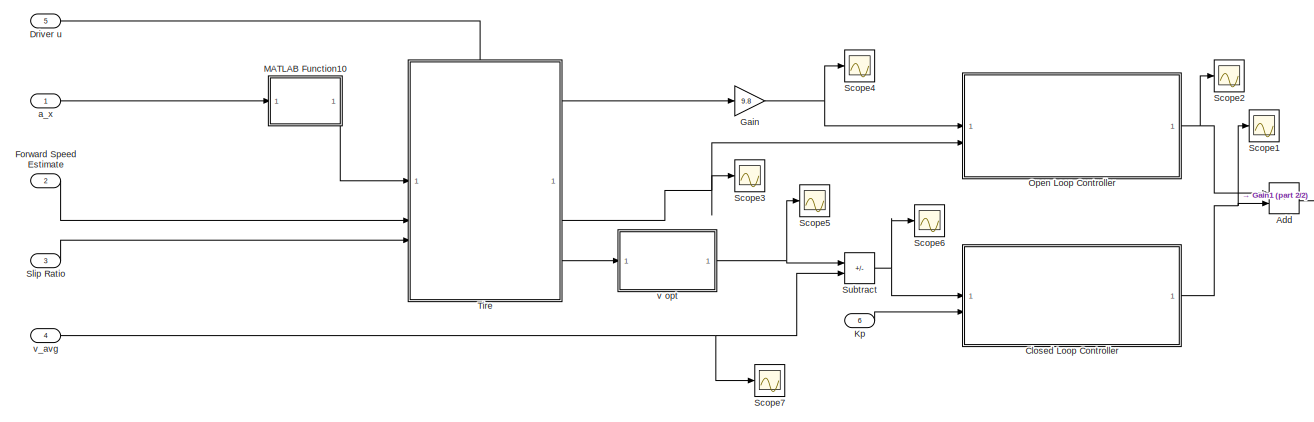
[diagram: TC Controller - part 1/2, most of the canvas]
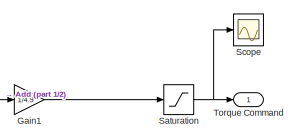
[diagram: TC Controller - part 2/2, middle right region]
BLOCK [SubSystem] TC Controller
BLOCK [Sum] TC Controller/Add
  IconShape = rectangular
BLOCK [SubSystem] TC Controller/Closed Loop Controller
BLOCK [Constant] TC Controller/Closed Loop Controller/Constant
  Value = 0.5
BLOCK [Product] TC Controller/Closed Loop Controller/Divide
  Inputs = */
BLOCK [Inport] TC Controller/Closed Loop Controller/In1
BLOCK [Inport] TC Controller/Closed Loop Controller/Kp
  Port = 2
BLOCK [Reference] TC Controller/Closed Loop Controller/PID Controller  REF=slpidlib/PID Controller
  LibrarySourceBlock = simulink/Continuous/PID Controller
  SourceBlock = slpidlib/PID Controller
  SourceType = PID 1dof
BLOCK [Outport] TC Controller/Closed Loop Controller/T Closed Loop
BLOCK [Inport] TC Controller/Driver u
  Port = 5
BLOCK [Inport] TC Controller/Forward Speed Estimate
  Port = 2
BLOCK [Gain] TC Controller/Gain
  Gain = 9.8
BLOCK [Gain] TC Controller/Gain1
  Gain = 1/4.9
BLOCK [Inport] TC Controller/Kp
  Port = 6
BLOCK [SubSystem] TC Controller/MATLAB Function10
  ErrorFcn = Stateflow.Translate.translate
  PermitHierarchicalResolution = ExplicitOnly
  SFBlockType = MATLAB Function
  TreatAsAtomicUnit = on
BLOCK [Demux] TC Controller/MATLAB Function10/ Demux 
  Outputs = 1
BLOCK [S-Function] TC Controller/MATLAB Function10/ SFunction 
  EnableBusSupport = on
  FunctionName = sf_sfun
  PortCounts = [1 2]
  SFcnIsStateOwnerBlock = off
  SFunctionDeploymentMode = off
  Tag = Stateflow S-Function 16
BLOCK [Terminator] TC Controller/MATLAB Function10/ Terminator 
BLOCK [Outport] TC Controller/MATLAB Function10/F_Z
BLOCK [Inport] TC Controller/MATLAB Function10/a_x
BLOCK [SubSystem] TC Controller/Open Loop Controller
BLOCK [Inport] TC Controller/Open Loop Controller/FZ
BLOCK [Gain] TC Controller/Open Loop Controller/Gain
  Gain = 0.203
BLOCK [Product] TC Controller/Open Loop Controller/Product
BLOCK [Outport] TC Controller/Open Loop Controller/T Open Loop
BLOCK [Inport] TC Controller/Open Loop Controller/u
  Port = 2
BLOCK [Saturate] TC Controller/Saturation
  LowerLimit = 0
  UpperLimit = 166
BLOCK [Scope] TC Controller/Scope
  Floating = off
  NumInputPorts = 1
  ScopeSpecificationString = Simulink.scopes.TimeScopeBlockCfg('CurrentConfiguration', extmgr.ConfigurationSet(extmgr.Configuration('Core','General UI',true),extmgr.Configuration('Core','Source UI',true),extmgr.Configuration('Sources','WiredSimulink',true,'DataLoggingVariableName','ScopeData1'),extmgr.Configuration('Visuals','Time Domain',true,'SerializedDisplays',{struct('MinYLimReal','-20.75','MaxYLimReal','186.75','YLabelR...<+1494ch>
BLOCK [Scope] TC Controller/Scope1
  Floating = off
  NumInputPorts = 1
  ScopeSpecificationString = Simulink.scopes.TimeScopeBlockCfg('CurrentConfiguration', extmgr.ConfigurationSet(extmgr.Configuration('Core','General UI',true),extmgr.Configuration('Core','Source UI',true),extmgr.Configuration('Sources','WiredSimulink',true,'DataLoggingVariableName','ScopeData2'),extmgr.Configuration('Visuals','Time Domain',true,'SerializedDisplays',{struct('MinYLimReal','-48.73024','MaxYLimReal','10.6881','YLa...<+1518ch>
BLOCK [Scope] TC Controller/Scope2
  Floating = off
  NumInputPorts = 1
  ScopeSpecificationString = Simulink.scopes.TimeScopeBlockCfg('CurrentConfiguration', extmgr.ConfigurationSet(extmgr.Configuration('Core','General UI',true),extmgr.Configuration('Core','Source UI',true),extmgr.Configuration('Sources','WiredSimulink',true,'DataLoggingVariableName','ScopeData3'),extmgr.Configuration('Visuals','Time Domain',true,'SerializedDisplays',{struct('MinYLimReal','-23.21751','MaxYLimReal','115.79176','Y...<+1497ch>
BLOCK [Scope] TC Controller/Scope3
  Floating = off
  NumInputPorts = 1
  ScopeSpecificationString = Simulink.scopes.TimeScopeBlockCfg('CurrentConfiguration', extmgr.ConfigurationSet(extmgr.Configuration('Core','General UI',true),extmgr.Configuration('Core','Source UI',true),extmgr.Configuration('Sources','WiredSimulink',true,'DataLoggingVariableName','ScopeData4'),extmgr.Configuration('Visuals','Time Domain',true,'SerializedDisplays',{struct('MinYLimReal','-0.14999','MaxYLimReal','1.34995','YLab...<+1474ch>
BLOCK [Scope] TC Controller/Scope4
  Floating = off
  NumInputPorts = 1
  ScopeSpecificationString = Simulink.scopes.TimeScopeBlockCfg('CurrentConfiguration', extmgr.ConfigurationSet(extmgr.Configuration('Core','General UI',true),extmgr.Configuration('Core','Source UI',true),extmgr.Configuration('Sources','WiredSimulink',true,'DataLoggingVariableName','ScopeData5'),extmgr.Configuration('Visuals','Time Domain',true,'SerializedDisplays',{struct('MinYLimReal','1556.73934','MaxYLimReal','1559.23366',...<+1493ch>
BLOCK [Scope] TC Controller/Scope5
  Floating = off
  NumInputPorts = 1
  ScopeSpecificationString = Simulink.scopes.TimeScopeBlockCfg('CurrentConfiguration', extmgr.ConfigurationSet(extmgr.Configuration('Core','General UI',true),extmgr.Configuration('Core','Source UI',true),extmgr.Configuration('Sources','WiredSimulink',true,'DataLoggingVariableName','ScopeData6'),extmgr.Configuration('Visuals','Time Domain',true,'SerializedDisplays',{struct('MinYLimReal','-0.22526','MaxYLimReal','0.38645','YLab...<+1472ch>
BLOCK [Scope] TC Controller/Scope6
  Floating = off
  NumInputPorts = 1
  ScopeSpecificationString = Simulink.scopes.TimeScopeBlockCfg('CurrentConfiguration', extmgr.ConfigurationSet(extmgr.Configuration('Core','General UI',true),extmgr.Configuration('Core','Source UI',true),extmgr.Configuration('Sources','WiredSimulink',true,'DataLoggingVariableName','ScopeData1'),extmgr.Configuration('Visuals','Time Domain',true,'SerializedDisplays',{struct('MinYLimReal','-0.19753','MaxYLimReal','0.04392','YLab...<+1475ch>
BLOCK [Scope] TC Controller/Scope7
  Floating = off
  NumInputPorts = 1
  ScopeSpecificationString = Simulink.scopes.TimeScopeBlockCfg('CurrentConfiguration', extmgr.ConfigurationSet(extmgr.Configuration('Core','General UI',true),extmgr.Configuration('Core','Source UI',true),extmgr.Configuration('Sources','WiredSimulink',true,'DataLoggingVariableName','ScopeData2'),extmgr.Configuration('Visuals','Time Domain',true,'SerializedDisplays',{struct('MinYLimReal','-11.72705','MaxYLimReal','105.54344','Y...<+1482ch>
BLOCK [Inport] TC Controller/Slip Ratio
  Port = 3
BLOCK [Sum] TC Controller/Subtract
  IconShape = rectangular
  Inputs = +-
BLOCK [SubSystem] TC Controller/Tire
  PortSchema = {"entries":[{"content":{"sides":[{"content":{"connectorIds":["In1","In2","In3"]},"type":"ConnectorPlacement.EquallySpacedRectSide","uuid":"4156dcb8-571a-4ee4-a7f1-7560a1681aa7"},{"content":{"connectorIds":["Out1","Out2","Out3"],"side":"RIGHT"},"type":"ConnectorPlacement.EquallySpacedRectSide","uuid":"73638d28-b906-4671-b83f-ad6b48e8d393"},{"content":{"connectorIds":["In4"],"side":"TOP"},"type":"Co...<+271ch>
BLOCK [Sum] TC Controller/Tire/Add
  IconShape = rectangular
BLOCK [Constant] TC Controller/Tire/Constant
BLOCK [Inport] TC Controller/Tire/Driver u
  Port = 4
BLOCK [Outport] TC Controller/Tire/FZ
BLOCK [Inport] TC Controller/Tire/F_Z
BLOCK [Inport] TC Controller/Tire/Forward Speed Estimate
  Port = 2
BLOCK [SubSystem] TC Controller/Tire/MATLAB Function
  ErrorFcn = Stateflow.Translate.translate
  PermitHierarchicalResolution = ExplicitOnly
  SFBlockType = MATLAB Function
  TreatAsAtomicUnit = on
BLOCK [Demux] TC Controller/Tire/MATLAB Function/ Demux 
  Outputs = 1
BLOCK [S-Function] TC Controller/Tire/MATLAB Function/ SFunction 
  EnableBusSupport = on
  FunctionName = sf_sfun
  PortCounts = [2 2]
  SFcnIsStateOwnerBlock = off
  SFunctionDeploymentMode = off
  Tag = Stateflow S-Function 17
BLOCK [Terminator] TC Controller/Tire/MATLAB Function/ Terminator 
BLOCK [Inport] TC Controller/Tire/MATLAB Function/D
  Port = 2
BLOCK [Inport] TC Controller/Tire/MATLAB Function/k
BLOCK [Outport] TC Controller/Tire/MATLAB Function/mu
BLOCK [SubSystem] TC Controller/Tire/MATLAB Function1
  ErrorFcn = Stateflow.Translate.translate
  PermitHierarchicalResolution = ExplicitOnly
  SFBlockType = MATLAB Function
  TreatAsAtomicUnit = on
BLOCK [Demux] TC Controller/Tire/MATLAB Function1/ Demux 
  Outputs = 1
BLOCK [S-Function] TC Controller/Tire/MATLAB Function1/ SFunction 
  EnableBusSupport = on
  FunctionName = sf_sfun
  PortCounts = [2 2]
  SFcnIsStateOwnerBlock = off
  SFunctionDeploymentMode = off
  Tag = Stateflow S-Function 18
BLOCK [Terminator] TC Controller/Tire/MATLAB Function1/ Terminator 
BLOCK [Inport] TC Controller/Tire/MATLAB Function1/D
  Port = 2
BLOCK [Inport] TC Controller/Tire/MATLAB Function1/FZ
BLOCK [Outport] TC Controller/Tire/MATLAB Function1/kopt
BLOCK [Product] TC Controller/Tire/Product
BLOCK [Inport] TC Controller/Tire/Slip Ratio
  Port = 3
BLOCK [Outport] TC Controller/Tire/mu
  Port = 2
BLOCK [Outport] TC Controller/Tire/speed opt
  Port = 3
BLOCK [Outport] TC Controller/Torque Command
BLOCK [Inport] TC Controller/a_x
BLOCK [SubSystem] TC Controller/v opt
  Commented = through
BLOCK [Gain] TC Controller/v opt/Circumference
  Gain = 2*pi*0.203
BLOCK [Gain] TC Controller/v opt/Gain1
  Gain = 3.6
BLOCK [Outport] TC Controller/v opt/Out1
BLOCK [Inport] TC Controller/v opt/w opt
BLOCK [Inport] TC Controller/v_avg
  Port = 4
BLOCK [Reference] Tire (Magic Formula)  REF=sdl_lib/Tires & Vehicles/Tire (Magic Formula)
  SourceBlock = sdl_lib/Tires & Vehicles/Tire (Magic Formula)
  SourceType = Tire (Magic Formula)
BLOCK [Reference] Tire (Magic Formula)1  REF=sdl_lib/Tires & Vehicles/Tire (Magic Formula)
  SourceBlock = sdl_lib/Tires & Vehicles/Tire (Magic Formula)
  SourceType = Tire (Magic Formula)
BLOCK [Reference] Tire (Magic Formula)2  REF=sdl_lib/Tires & Vehicles/Tire (Magic Formula)
  SourceBlock = sdl_lib/Tires & Vehicles/Tire (Magic Formula)
  SourceType = Tire (Magic Formula)
BLOCK [Reference] Tire (Magic Formula)3  REF=sdl_lib/Tires & Vehicles/Tire (Magic Formula)
  SourceBlock = sdl_lib/Tires & Vehicles/Tire (Magic Formula)
  SourceType = Tire (Magic Formula)
BLOCK [Reference] Torque @ diff  REF=fl_lib/Mechanical/Mechanical Sensors/Ideal Torque Sensor
  SourceBlock = fl_lib/Mechanical/Mechanical Sensors/Ideal Torque Sensor
  SourceType = Ideal Torque Sensor
BLOCK [Reference] Torque @ motor  REF=fl_lib/Mechanical/Mechanical Sensors/Ideal Torque Sensor
  Commented = on
  SourceBlock = fl_lib/Mechanical/Mechanical Sensors/Ideal Torque Sensor
  SourceType = Ideal Torque Sensor
BLOCK [Step] Torque Command
  After = 100
  Commented = on
  SampleTime = 0
  Time = .1
BLOCK [UnitDelay] Unit Delay
  HasFrameUpgradeWarning = on
  SampleTime = -1
BLOCK [UnitDelay] Unit Delay1
  HasFrameUpgradeWarning = on
  NameLocation = right
  SampleTime = -1
BLOCK [Reference] Vehicle Body  REF=sdl_lib/Tires & Vehicles/Vehicle Body
  NameLocation = right
  SourceBlock = sdl_lib/Tires & Vehicles/Vehicle Body
  SourceType = Vehicle Body
BLOCK [Step] Velocity Command
  After = 140
  Commented = on
  SampleTime = 0
  Time = 100
BLOCK [Reference] Voltage Sensor  REF=fl_lib/Electrical/Electrical Sensors/Voltage Sensor
  Commented = on
  NameLocation = right
  SourceBlock = fl_lib/Electrical/Electrical Sensors/Voltage Sensor
  SourceType = Voltage Sensor
BLOCK [Reference] Voltage Source  REF=ee_lib/Sources/Voltage Source
  Commented = on
  NameLocation = right
  SourceBlock = ee_lib/Sources/Voltage Source
  SourceType = Voltage Source
BLOCK [Reference] Wheel inertia  REF=fl_lib/Mechanical/Rotational Elements/Inertia
  NameLocation = right
  SourceBlock = fl_lib/Mechanical/Rotational Elements/Inertia
  SourceType = Inertia
BLOCK [Reference] Wheel inertia1  REF=fl_lib/Mechanical/Rotational Elements/Inertia
  NameLocation = right
  SourceBlock = fl_lib/Mechanical/Rotational Elements/Inertia
  SourceType = Inertia
BLOCK [Reference] Wheel speed  REF=fl_lib/Mechanical/Mechanical Sensors/Ideal Rotational
Motion Sensor
  SourceBlock = fl_lib/Mechanical/Mechanical Sensors/Ideal Rotational\nMotion Sensor
  SourceType = Ideal Rotational\nMotion Sensor
BLOCK [Reference] Wheel speed1  REF=fl_lib/Mechanical/Mechanical Sensors/Ideal Rotational
Motion Sensor
  SourceBlock = fl_lib/Mechanical/Mechanical Sensors/Ideal Rotational\nMotion Sensor
  SourceType = Ideal Rotational\nMotion Sensor
BLOCK [SubSystem] XY Plot
  CopyFcn = plecs('sl', 318);
  DeleteFcn = plecs('sl', 305);
  DestroyFcn = plecs('sl', 307);
  ErrorFcn = plerrorfcn
  InitFcn = plecs('sl', 314);
  LoadFcn = plecs('sl', 317);
  NameChangeFcn = plecs('sl', 310);
  OpenFcn = plecs('sl', 302);
  PreSaveFcn = plecs('sl', 311);
  StartFcn = plecs('sl', 308);
  StopFcn = plecs('sl', 309);
  UndoDeleteFcn = plecs('sl', 306);
BLOCK [SubSystem] XY Plot/ InputMux 
BLOCK [DataTypeConversion] XY Plot/ InputMux /Convert1
BLOCK [DataTypeConversion] XY Plot/ InputMux /Convert2
BLOCK [Inport] XY Plot/ InputMux /In1
BLOCK [Inport] XY Plot/ InputMux /In2
  Port = 2
BLOCK [Mux] XY Plot/ InputMux /Mux
  Inputs = 2
BLOCK [Outport] XY Plot/ InputMux /Out
BLOCK [S-Function] XY Plot/ S-Function 
  EnableBusSupport = off
  FunctionName = plecs
  SFcnIsStateOwnerBlock = off
  SFunctionDeploymentMode = off
BLOCK [Inport] XY Plot/1
BLOCK [Inport] XY Plot/2
  Port = 2
BLOCK [SubSystem] XY Plot1
  CopyFcn = plecs('sl', 318);
  DeleteFcn = plecs('sl', 305);
  DestroyFcn = plecs('sl', 307);
  ErrorFcn = plerrorfcn
  InitFcn = plecs('sl', 314);
  LoadFcn = plecs('sl', 317);
  NameChangeFcn = plecs('sl', 310);
  OpenFcn = plecs('sl', 302);
  PreSaveFcn = plecs('sl', 311);
  StartFcn = plecs('sl', 308);
  StopFcn = plecs('sl', 309);
  UndoDeleteFcn = plecs('sl', 306);
BLOCK [SubSystem] XY Plot1/ InputMux 
BLOCK [DataTypeConversion] XY Plot1/ InputMux /Convert1
BLOCK [DataTypeConversion] XY Plot1/ InputMux /Convert2
BLOCK [Inport] XY Plot1/ InputMux /In1
BLOCK [Inport] XY Plot1/ InputMux /In2
  Port = 2
BLOCK [Mux] XY Plot1/ InputMux /Mux
  Inputs = 2
BLOCK [Outport] XY Plot1/ InputMux /Out
BLOCK [S-Function] XY Plot1/ S-Function 
  EnableBusSupport = off
  FunctionName = plecs
  SFcnIsStateOwnerBlock = off
  SFunctionDeploymentMode = off
BLOCK [Inport] XY Plot1/1
BLOCK [Inport] XY Plot1/2
  Port = 2
BLOCK [Scope] speeds
  Floating = off
  NumInputPorts = 2
  ScopeSpecificationString = Simulink.scopes.TimeScopeBlockCfg('CurrentConfiguration', extmgr.ConfigurationSet(extmgr.Configuration('Core','General UI',true),extmgr.Configuration('Core','Source UI',true),extmgr.Configuration('Sources','WiredSimulink',true,'DataLoggingVariableName','ScopeData1'),extmgr.Configuration('Visuals','Time Domain',true,'SerializedDisplays',{struct('MinYLimReal','-4.24305','MaxYLimReal','38.18743','YLa...<+1503ch>
ANNOTATION (root): .3-75.3m
ANNOTATION (root): 0-100kph
ANNOTATION (root): 0-75.3m
LINE Band-Limited White Noise1:1 -> Sum3:1
LINE Band-Limited White Noise:1 -> Sum2:1
LINE Bus Selector:1 -> Goto1:1
LINE Bus Selector:2 -> Goto:1
LINE Bus Selector:3 -> Goto3:1
LINE Bus Selector:4 -> Scope8:1
LINE Bus Selector:5 -> Scope8:2
LINE Clock1:1 -> Enabled Subsystem1:1
LINE Clock2:1 -> Enabled Subsystem2:1
LINE Clock:1 -> Enabled Subsystem:1
LINE Constant10:1 -> TC Controller:6
LINE Constant11:1 -> TC Controller:5
LINE Constant12:1 -> Switch:3
LINE Constant13:1 -> Saturation2:1
LINE Constant14:1 -> MATLAB Function11:2
NET Constant1:1 -> GreaterThanOrEqual:2, Mux:3
LINE Constant2:1 -> Sum:1
LINE Constant4:1 -> PID Controller:3
LINE Constant5:1 -> PID Controller:2
LINE Constant6:1 -> GreaterThanOrEqual2:2
LINE Constant8:1 -> Controller:1
LINE Constant9:1 -> Subtract:1
NET Constant:1 -> GreaterThanOrEqual1:2, Mux:2
LINE Controller/Constant1:1 -> Controller/Switch:3
LINE Controller/Constant:1 -> Controller/Sum1:2
NET Controller/Forward Speed:1 -> Controller/K*gain (N*s^2):1, Controller/Scope:2, Controller/Switch:2
LINE Controller/Gain:1 -> Controller/Saturation1:1
NET Controller/Integrator:1 -> Controller/Gain:1, Controller/Scope1:1
LINE Controller/K*gain (N*s^2):1 -> Controller/Sum1:1
LINE Controller/MATLAB Function1:1 -> Controller/Integrator:1
LINE Controller/MATLAB Function:1 -> Controller/Sum2:1
NET Controller/SR Setpoint:1 -> Controller/Sum3:1, Controller/Sum:1
LINE Controller/Saturation1:1 -> Controller/Torque Request:1
LINE Controller/Saturation:1 -> Controller/Switch:1
NET Controller/Slip Ratio:1 -> Controller/Sum3:2, Controller/Sum:2
LINE Controller/Sum2:1 -> Controller/Saturation:1
LINE Controller/Sum3:1 -> Controller/MATLAB Function1:1
NET Controller/Sum:1 -> Controller/MATLAB Function:1, Controller/PID Controller:1, Controller/Scope:1
LINE Controller:1 -> Scope19:1
LINE Demux:1 -> Simulink-PS Converter1:1
LINE Demux:2 -> Simulink-PS Converter2:1
LINE Demux:3 -> Simulink-PS Converter3:1
LINE Demux:4 -> Simulink-PS Converter4:1
LINE Demux:5 -> Simulink-PS Converter5:1
LINE Demux:6 -> Simulink-PS Converter6:1
LINE Divide:1 -> Subtract:2
LINE Enabled Subsystem/In1:1 -> Enabled Subsystem/Out1:1
LINE Enabled Subsystem1/In1:1 -> Enabled Subsystem1/Out1:1
LINE Enabled Subsystem1:1 -> Minus:2
LINE Enabled Subsystem2/In1:1 -> Enabled Subsystem2/Out1:1
LINE Enabled Subsystem2:1 -> Out4:1
NET Enabled Subsystem:1 -> Minus:1, Out1:1, Scope14:1
LINE Gain1:1 -> Unit Delay:1
LINE Gain3:1 -> Gain4:1
NET Gain4:1 -> Divide:1, Rate Transition1:1, Scope20:2
LINE Gain5:1 -> Gain6:1
NET Gain6:1 -> Divide:2, Rate Transition:1
NET Gain:1 -> Out2:1, Scope12:1, XY Plot1:1, XY Plot:1
LINE GreaterThanOrEqual1:1 -> Enabled Subsystem1:enable
LINE GreaterThanOrEqual2:1 -> Enabled Subsystem2:enable
LINE GreaterThanOrEqual:1 -> Enabled Subsystem:enable
LINE Kalman/Accel:1 -> Kalman/MATLAB System:1
LINE Kalman/MATLAB System:1 -> Kalman/Forward Speed:1
LINE Kalman/Speed F:1 -> Kalman/MATLAB System:2
NET Kalman:1 -> Controller:3, Scope16:1, Scope23:1, Slip Ratio Calculation:2, Switch:2, TC Controller:2, speeds:2
NET Long G Force:1 -> Rate Transition2:1, Scope4:1
LINE MATLAB Function11:1 -> Saturation1:1
NET Minus:1 -> Out3:1, Scope15:1
LINE Mux:1 -> Scope4:3
NET PMSM Field-Oriented Control:1 -> Demux:1, Goto2:1
LINE PMSM Field-Oriented Control:2 -> Bus Selector:1
LINE PS-Simulink Converter10:1 -> RT1:1
LINE PS-Simulink Converter11:1 -> RT4:1
NET PS-Simulink Converter12:1 -> Goto4:1, Scope5:1
NET PS-Simulink Converter13:1 -> Goto5:1, Scope7:1
LINE PS-Simulink Converter14:1 -> Scope9:1
NET PS-Simulink Converter15:1 -> Scope10:1, XY Plot:2
LINE PS-Simulink Converter16:1 -> Gain:1
LINE PS-Simulink Converter17:1 -> Scope11:1
LINE PS-Simulink Converter18:1 -> Scope21:1
NET PS-Simulink Converter19:1 -> Scope13:1, XY Plot1:2
LINE PS-Simulink Converter1:1 -> Scope2:1
LINE PS-Simulink Converter20:1 -> Scope21:2
LINE PS-Simulink Converter21:1 -> Gain3:1
LINE PS-Simulink Converter2:1 -> Scope2:2
LINE PS-Simulink Converter3:1 -> Scope3:2
LINE PS-Simulink Converter4:1 -> Scope1:1
LINE PS-Simulink Converter5:1 -> Long G Force:1
LINE PS-Simulink Converter6:1 -> Scope3:1
LINE PS-Simulink Converter7:1 -> Speed:1
LINE PS-Simulink Converter8:1 -> RT3:1
LINE PS-Simulink Converter9:1 -> RT2:1
NET PS-Simulink Converter:1 -> Gain5:1, Scope:1
NET Position:1 -> GreaterThanOrEqual1:1, GreaterThanOrEqual:1, Mux:1
LINE Product:1 -> Scope25:1
LINE RT1:1 -> PMSM Field-Oriented Control:4
LINE RT2:1 -> PMSM Field-Oriented Control:3
LINE RT3:1 -> PMSM Field-Oriented Control:2
LINE RT4:1 -> PMSM Field-Oriented Control:5
LINE RT5:1 -> PMSM Field-Oriented Control:1
NET Rate Transition1:1 -> Kalman:2, Scope23:2
NET Rate Transition2:1 -> Kalman:1, Scope22:1, Scope24:1, TC Controller:1
LINE Rate Transition3:1 -> Simulink-PS Converter:1
NET Rate Transition:1 -> Slip Ratio Calculation:1, TC Controller:4, speeds:1
LINE Saturation1:1 -> Product:1
LINE Saturation2:1 -> Product:2
LINE Scope11/ InputMux /Convert1:1 -> Scope11/ InputMux /Mux:1
LINE Scope11/ InputMux /In1:1 -> Scope11/ InputMux /Convert1:1
LINE Scope11/ InputMux /Mux:1 -> Scope11/ InputMux /Out:1
LINE Scope11/ InputMux :1 -> Scope11/ S-Function :1
LINE Scope11/1:1 -> Scope11/ InputMux :1
LINE Scope12/ InputMux /Convert1:1 -> Scope12/ InputMux /Mux:1
LINE Scope12/ InputMux /In1:1 -> Scope12/ InputMux /Convert1:1
LINE Scope12/ InputMux /Mux:1 -> Scope12/ InputMux /Out:1
LINE Scope12/ InputMux :1 -> Scope12/ S-Function :1
LINE Scope12/1:1 -> Scope12/ InputMux :1
LINE Scope14/ InputMux /Convert1:1 -> Scope14/ InputMux /Mux:1
LINE Scope14/ InputMux /In1:1 -> Scope14/ InputMux /Convert1:1
LINE Scope14/ InputMux /Mux:1 -> Scope14/ InputMux /Out:1
LINE Scope14/ InputMux :1 -> Scope14/ S-Function :1
LINE Scope14/1:1 -> Scope14/ InputMux :1
LINE Scope15/ InputMux /Convert1:1 -> Scope15/ InputMux /Mux:1
LINE Scope15/ InputMux /In1:1 -> Scope15/ InputMux /Convert1:1
LINE Scope15/ InputMux /Mux:1 -> Scope15/ InputMux /Out:1
LINE Scope15/ InputMux :1 -> Scope15/ S-Function :1
LINE Scope15/1:1 -> Scope15/ InputMux :1
LINE Signals /From2:1 -> Signals /Mux1:1
LINE Signals /From34:1 -> Signals /RT3:1
LINE Signals /From35:1 -> Signals /RT6:1
LINE Signals /From4:1 -> Signals /RT5:1
LINE Signals /From5:1 -> Signals /Mux:1
LINE Signals /From6:1 -> Signals /RT4:1
LINE Signals /Mux1:1 -> Signals /rad//s2rpm:1
LINE Signals /Mux:1 -> Signals /RT1:1
LINE Signals /RT1:1 -> Signals /Trq:1
LINE Signals /RT2:1 -> Signals /Spd:1
LINE Signals /RT3:1 -> Signals /Iabc:1
LINE Signals /RT4:1 -> Signals /Mux:2
LINE Signals /RT5:1 -> Signals /Mux1:2
LINE Signals /RT6:1 -> Signals /G:1
LINE Signals /rad//s2rpm:1 -> Signals /RT2:1
LINE Signals :1 -> Scope6:1
LINE Signals :2 -> Scope6:2
LINE Signals :3 -> Scope6:3
LINE Signals :4 -> Scope6:4
LINE Slip Ratio Calculation/Forward Speed:1 -> Slip Ratio Calculation/MATLAB Function:1
LINE Slip Ratio Calculation/MATLAB Function:1 -> Slip Ratio Calculation/Slip Ratio:1
LINE Slip Ratio Calculation/RR:1 -> Slip Ratio Calculation/MATLAB Function:2
NET Slip Ratio Calculation:1 -> Controller:2, MATLAB Function11:1, Scope18:1, TC Controller:3
NET Speed:1 -> GreaterThanOrEqual2:1, Scope4:2, Subsystem:1
LINE Subsystem/Clock3:1 -> Subsystem/Triggered Subsystem:1
NET Subsystem/Compare To Constant:1 -> Subsystem/Triggered Subsystem3:trigger, Subsystem/Triggered Subsystem:trigger
LINE Subsystem/Constant7:1 -> Subsystem/Mod:2
LINE Subsystem/Delay:1 -> Subsystem/Triggered Subsystem3:1
LINE Subsystem/Gain2:1 -> Subsystem/Mod:1
LINE Subsystem/Gain3:1 -> Subsystem/Speed F:1
LINE Subsystem/In1:1 -> Subsystem/Integrator:1
LINE Subsystem/Integrator:1 -> Subsystem/Gain2:1
LINE Subsystem/Minus1:1 -> Subsystem/Saturation:1
NET Subsystem/Mod:1 -> Subsystem/Compare To Constant:1, Subsystem/Scope16:1
LINE Subsystem/Reciprocal:1 -> Subsystem/Gain3:1
NET Subsystem/Saturation:1 -> Subsystem/Reciprocal:1, Subsystem/Scope17:3
LINE Subsystem/Triggered Subsystem/In1:1 -> Subsystem/Triggered Subsystem/Out1:1
LINE Subsystem/Triggered Subsystem3/In1:1 -> Subsystem/Triggered Subsystem3/Out1:1
NET Subsystem/Triggered Subsystem3:1 -> Subsystem/Minus1:2, Subsystem/Scope17:2
NET Subsystem/Triggered Subsystem:1 -> Subsystem/Delay:1, Subsystem/Minus1:1, Subsystem/Scope17:1
LINE Subsystem:1 -> Saturation:1
LINE Subtract:1 -> Scope17:1
NET Switch:1 -> Scope26:1, Unit Delay1:1
LINE TC Controller/Add:1 -> TC Controller/Gain1:1
LINE TC Controller/Closed Loop Controller/Constant:1 -> TC Controller/Closed Loop Controller/Divide:2
LINE TC Controller/Closed Loop Controller/Divide:1 -> TC Controller/Closed Loop Controller/PID Controller:3
LINE TC Controller/Closed Loop Controller/In1:1 -> TC Controller/Closed Loop Controller/PID Controller:1
NET TC Controller/Closed Loop Controller/Kp:1 -> TC Controller/Closed Loop Controller/Divide:1, TC Controller/Closed Loop Controller/PID Controller:2
LINE TC Controller/Closed Loop Controller/PID Controller:1 -> TC Controller/Closed Loop Controller/T Closed Loop:1
NET TC Controller/Closed Loop Controller:1 -> TC Controller/Add:2, TC Controller/Scope1:1
LINE TC Controller/Driver u:1 -> TC Controller/Tire:4
LINE TC Controller/Forward Speed Estimate:1 -> TC Controller/Tire:2
LINE TC Controller/Gain1:1 -> TC Controller/Saturation:1
NET TC Controller/Gain:1 -> TC Controller/Open Loop Controller:1, TC Controller/Scope4:1
LINE TC Controller/Kp:1 -> TC Controller/Closed Loop Controller:2
LINE TC Controller/MATLAB Function10:1 -> TC Controller/Tire:1
LINE TC Controller/Open Loop Controller/FZ:1 -> TC Controller/Open Loop Controller/Product:1
LINE TC Controller/Open Loop Controller/Gain:1 -> TC Controller/Open Loop Controller/T Open Loop:1
LINE TC Controller/Open Loop Controller/Product:1 -> TC Controller/Open Loop Controller/Gain:1
LINE TC Controller/Open Loop Controller/u:1 -> TC Controller/Open Loop Controller/Product:2
NET TC Controller/Open Loop Controller:1 -> TC Controller/Add:1, TC Controller/Scope2:1
NET TC Controller/Saturation:1 -> TC Controller/Scope:1, TC Controller/Torque Command:1
LINE TC Controller/Slip Ratio:1 -> TC Controller/Tire:3
NET TC Controller/Subtract:1 -> TC Controller/Closed Loop Controller:1, TC Controller/Scope6:1
LINE TC Controller/Tire/Add:1 -> TC Controller/Tire/Product:1
LINE TC Controller/Tire/Constant:1 -> TC Controller/Tire/Add:2
NET TC Controller/Tire/Driver u:1 -> TC Controller/Tire/MATLAB Function1:2, TC Controller/Tire/MATLAB Function:2
NET TC Controller/Tire/F_Z:1 -> TC Controller/Tire/FZ:1, TC Controller/Tire/MATLAB Function1:1
LINE TC Controller/Tire/Forward Speed Estimate:1 -> TC Controller/Tire/Product:2
LINE TC Controller/Tire/MATLAB Function1:1 -> TC Controller/Tire/Add:1
LINE TC Controller/Tire/MATLAB Function:1 -> TC Controller/Tire/mu:1
LINE TC Controller/Tire/Product:1 -> TC Controller/Tire/speed opt:1
LINE TC Controller/Tire/Slip Ratio:1 -> TC Controller/Tire/MATLAB Function:1
LINE TC Controller/Tire:1 -> TC Controller/Gain:1
NET TC Controller/Tire:2 -> TC Controller/Open Loop Controller:2, TC Controller/Scope3:1
LINE TC Controller/Tire:3 -> TC Controller/v opt:1
LINE TC Controller/a_x:1 -> TC Controller/MATLAB Function10:1
LINE TC Controller/v opt/Circumference:1 -> TC Controller/v opt/Out1:1
LINE TC Controller/v opt/Gain1:1 -> TC Controller/v opt/Circumference:1
LINE TC Controller/v opt/w opt:1 -> TC Controller/v opt/Gain1:1
NET TC Controller/v opt:1 -> TC Controller/Scope5:1, TC Controller/Subtract:1
NET TC Controller/v_avg:1 -> TC Controller/Scope7:1, TC Controller/Subtract:2
NET TC Controller:1 -> Scope27:1, Switch:1
LINE Torque Command:1 -> RT5:1
LINE Unit Delay1:1 -> Rate Transition3:1
LINE Velocity Command:1 -> Rate Limiter:1
LINE XY Plot/ InputMux /Convert1:1 -> XY Plot/ InputMux /Mux:1
LINE XY Plot/ InputMux /Convert2:1 -> XY Plot/ InputMux /Mux:2
LINE XY Plot/ InputMux /In1:1 -> XY Plot/ InputMux /Convert1:1
LINE XY Plot/ InputMux /In2:1 -> XY Plot/ InputMux /Convert2:1
LINE XY Plot/ InputMux /Mux:1 -> XY Plot/ InputMux /Out:1
LINE XY Plot/ InputMux :1 -> XY Plot/ S-Function :1
LINE XY Plot/1:1 -> XY Plot/ InputMux :2
LINE XY Plot/2:1 -> XY Plot/ InputMux :1
LINE XY Plot1/ InputMux /Convert1:1 -> XY Plot1/ InputMux /Mux:1
LINE XY Plot1/ InputMux /Convert2:1 -> XY Plot1/ InputMux /Mux:2
LINE XY Plot1/ InputMux /In1:1 -> XY Plot1/ InputMux /Convert1:1
LINE XY Plot1/ InputMux /In2:1 -> XY Plot1/ InputMux /Convert2:1
LINE XY Plot1/ InputMux /Mux:1 -> XY Plot1/ InputMux /Out:1
LINE XY Plot1/ InputMux :1 -> XY Plot1/ S-Function :1
LINE XY Plot1/1:1 -> XY Plot1/ InputMux :2
LINE XY Plot1/2:1 -> XY Plot1/ InputMux :1
PNET net1: 3 Phase Inverter/+:RConn1 -- 3 Phase Inverter/IGBT (Ideal, Switching)1:RConn1 -- 3 Phase Inverter/IGBT (Ideal, Switching)2:RConn1 -- 3 Phase Inverter/IGBT (Ideal, Switching):RConn1
PNET net2: 3 Phase Inverter/-:RConn1 -- 3 Phase Inverter/IGBT (Ideal, Switching)3:RConn2 -- 3 Phase Inverter/IGBT (Ideal, Switching)4:RConn2 -- 3 Phase Inverter/IGBT (Ideal, Switching)5:RConn2
PLINE 3 Phase Inverter/A+:RConn1 -- 3 Phase Inverter/IGBT (Ideal, Switching):LConn1
PLINE 3 Phase Inverter/A-:RConn1 -- 3 Phase Inverter/IGBT (Ideal, Switching)3:LConn1
PNET net3: 3 Phase Inverter/A:RConn1 -- 3 Phase Inverter/IGBT (Ideal, Switching)3:RConn1 -- 3 Phase Inverter/IGBT (Ideal, Switching):RConn2
PLINE 3 Phase Inverter/B+:RConn1 -- 3 Phase Inverter/IGBT (Ideal, Switching)1:LConn1
PLINE 3 Phase Inverter/B-:RConn1 -- 3 Phase Inverter/IGBT (Ideal, Switching)4:LConn1
PNET net4: 3 Phase Inverter/B:RConn1 -- 3 Phase Inverter/IGBT (Ideal, Switching)1:RConn2 -- 3 Phase Inverter/IGBT (Ideal, Switching)4:RConn1
PLINE 3 Phase Inverter/C+:RConn1 -- 3 Phase Inverter/IGBT (Ideal, Switching)2:LConn1
PLINE 3 Phase Inverter/C-:RConn1 -- 3 Phase Inverter/IGBT (Ideal, Switching)5:LConn1
PNET net5: 3 Phase Inverter/C:RConn1 -- 3 Phase Inverter/IGBT (Ideal, Switching)2:RConn2 -- 3 Phase Inverter/IGBT (Ideal, Switching)5:RConn1
PNET net6: 3 Phase Inverter:LConn1 -- Battery:LConn1 -- Voltage Sensor:LConn1 -- Voltage Source:LConn1
PNET net7: 3 Phase Inverter:LConn2 -- Battery:RConn1 -- Electrical Reference:LConn1 -- Voltage Sensor:RConn2 -- Voltage Source:RConn1
PLINE 3 Phase Inverter:LConn3 -- Simulink-PS Converter1:RConn1
PLINE 3 Phase Inverter:LConn4 -- Simulink-PS Converter2:RConn1
PLINE 3 Phase Inverter:LConn5 -- Simulink-PS Converter3:RConn1
PLINE 3 Phase Inverter:LConn6 -- Simulink-PS Converter4:RConn1
PLINE 3 Phase Inverter:LConn7 -- Simulink-PS Converter5:RConn1
PLINE 3 Phase Inverter:LConn8 -- Simulink-PS Converter6:RConn1
PLINE 3 Phase Inverter:RConn1 -- Phase Splitter:RConn1
PLINE 3 Phase Inverter:RConn2 -- Phase Splitter:RConn3
PLINE 3 Phase Inverter:RConn3 -- Phase Splitter:RConn2
PNET net8: Chain:LConn1 -- Inertia:LConn1 -- Motor:RConn3 -- Rotor inertia:LConn1 -- Simple Gear:LConn1 -- Solver Configuration1:RConn1
PNET net9: Chain:RConn1 -- Simple Gear:RConn1 -- Torque @ diff:LConn1
PLINE Current Sensor (Three-Phase):LConn1 -- Phase Splitter:LConn1
PLINE Current Sensor (Three-Phase):RConn1 -- PS-Simulink Converter8:LConn1
PLINE Current Sensor (Three-Phase):RConn2 -- PMSM:LConn1
PNET net10: Half shaft:LConn1 -- Rotational Damper:LConn1 -- Torque @ diff:RConn1
PNET net11: Half shaft:RConn1 -- Rotational Damper:RConn1 -- Tire (Magic Formula)1:LConn2 -- Tire (Magic Formula):LConn2 -- Wheel inertia:LConn1 -- Wheel speed:LConn1
PNET net12: Ideal Translational Motion Sensor:LConn1 -- Tire (Magic Formula)1:RConn2 -- Tire (Magic Formula)2:RConn2 -- Tire (Magic Formula)3:RConn2 -- Tire (Magic Formula):RConn2 -- Vehicle Body:LConn1
PLINE Ideal Translational Motion Sensor:RConn1 -- PS-Simulink Converter5:LConn1
PLINE Ideal Translational Motion Sensor:RConn2 -- PS-Simulink Converter7:LConn1
PLINE Ideal Translational Motion Sensor:RConn3 -- Position:LConn1
PNET net13: Mechanical Rotational Reference1:LConn1 -- PMSM:RConn2 -- Resolver:RConn1
PLINE Mechanical Rotational Reference:LConn1 -- Motor:LConn2
PNET net14: Motor/Connection Port:RConn1 -- Motor/Efficiency Map:RConn1 -- Motor/PS Product:LConn2
PNET net15: Motor/Efficiency Map:LConn1 -- Motor/Ideal Rotational Motion Sensor:RConn2 -- Motor/PS Saturation:LConn1 -- Motor/Torque-Speed:LConn1 -- Motor/W:RConn1
PLINE Motor/Efficiency Map:LConn2 -- Motor/PS Gain:RConn1
PNET net16: Motor/Ideal Rotational Motion Sensor:LConn1 -- Motor/Ideal Torque Sensor:LConn1 -- Motor/Ideal Torque Source:LConn1
PNET net17: Motor/Ideal Rotational Motion Sensor:RConn1 -- Motor/Ideal Torque Source:RConn2 -- Motor/stator:RConn1
PLINE Motor/Ideal Torque Sensor:RConn1 -- Motor/rotor:RConn1
PNET net18: Motor/Ideal Torque Sensor:RConn2 -- Motor/M:RConn1 -- Motor/PS Gain:LConn1
PLINE Motor/Ideal Torque Source:RConn1 -- Motor/PS Product2:RConn1
PLINE Motor/M*:RConn1 -- Motor/PS Gain2:LConn1
PNET net19: Motor/PS Abs:LConn1 -- Motor/PS Gain2:RConn1 -- Motor/PS Sign:LConn1
PLINE Motor/PS Abs:RConn1 -- Motor/PS Min2:LConn1
PLINE Motor/PS Constant6:RConn1 -- Motor/PS Min1:LConn2
PLINE Motor/PS Constant7:RConn1 -- Motor/PS Min1:LConn1
PLINE Motor/PS Divide:LConn1 -- Motor/PS Product:RConn1
PLINE Motor/PS Divide:LConn2 -- Motor/PS Saturation:RConn1
PLINE Motor/PS Divide:RConn1 -- Motor/PS Min:LConn2
PLINE Motor/PS Gain1:LConn1 -- Motor/PS Min:RConn1
PLINE Motor/PS Gain1:RConn1 -- Motor/PS Min2:LConn2
PLINE Motor/PS Min1:RConn1 -- Motor/PS Product:LConn1
PLINE Motor/PS Min2:RConn1 -- Motor/PS Product2:LConn2
PLINE Motor/PS Min:LConn1 -- Motor/Torque-Speed:RConn1
PLINE Motor/PS Product2:LConn1 -- Motor/PS Sign:RConn1
PLINE Motor:LConn1 -- Simulink-PS Converter:RConn1
PNET net20: Motor:RConn1 -- PS Product1:LConn1 -- PS-Simulink Converter16:LConn1
PNET net21: Motor:RConn2 -- PS Product1:LConn2 -- PS-Simulink Converter15:LConn1
PLINE Motor:RConn4 -- PS-Simulink Converter17:LConn1
PLINE PMSM:RConn1 -- Torque @ motor:LConn1
PLINE PS Constant1:RConn1 -- Vehicle Body:RConn3
PLINE PS Constant:RConn1 -- Vehicle Body:LConn3
PLINE PS Product1:RConn1 -- PS-Simulink Converter19:LConn1
PNET net22: PS-Simulink Converter10:LConn1 -- PS-Simulink Converter14:LConn1 -- Resolver:RConn3
PLINE PS-Simulink Converter11:LConn1 -- Voltage Sensor:RConn1
PNET net23: PS-Simulink Converter12:LConn1 -- PS-Simulink Converter9:LConn1 -- Resolver:RConn2
PLINE PS-Simulink Converter13:LConn1 -- Torque @ motor:RConn2
PLINE PS-Simulink Converter18:LConn1 -- Tire (Magic Formula)2:RConn1
PLINE PS-Simulink Converter1:LConn1 -- Tire (Magic Formula):RConn1
PLINE PS-Simulink Converter20:LConn1 -- Tire (Magic Formula)3:RConn1
PLINE PS-Simulink Converter21:LConn1 -- Wheel speed1:RConn1
PLINE PS-Simulink Converter2:LConn1 -- Tire (Magic Formula)1:RConn1
PNET net24: PS-Simulink Converter3:LConn1 -- Tire (Magic Formula)1:LConn1 -- Tire (Magic Formula):LConn1 -- Vehicle Body:RConn1
PLINE PS-Simulink Converter4:LConn1 -- Torque @ diff:RConn2
PNET net25: PS-Simulink Converter6:LConn1 -- Tire (Magic Formula)2:LConn1 -- Tire (Magic Formula)3:LConn1 -- Vehicle Body:RConn2
PLINE PS-Simulink Converter:LConn1 -- Wheel speed:RConn1
PLINE Resolver:LConn1 -- Torque @ motor:RConn1
PNET net26: Tire (Magic Formula)2:LConn2 -- Tire (Magic Formula)3:LConn2 -- Wheel inertia1:LConn1 -- Wheel speed1:LConn1
note: NET lines group one-source signal fan-out (src -> all destinations, sorted); 1:1 wires keep LINE; PNET lines group multi-terminal physical nets as a canonical sorted terminal list (undirected conserving connections); 2-terminal nets keep the pairwise PLINE form
CHART Slip Ratio Calculation/MATLAB Function states=1 transitions=1
  STATE_LABEL 'eML_blk_kernel()'
  STATE_LABEL 'SCRIPT:\nfunction y = fcn(fwd_speed,v_rear)\n\ny = (v_rear - fwd_speed)/(max([fwd_speed,0.1]));\n'
CHART Controller/MATLAB Function1 states=1 transitions=1
  STATE_LABEL 'eML_blk_kernel()'
  STATE_LABEL 'SCRIPT:\nfunction y = fcn(u)\n\ny = sign(u);\n'
CHART TC Controller/MATLAB Function10 states=1 transitions=1
  STATE_LABEL 'eML_blk_kernel()'
  STATE_LABEL 'SCRIPT:\nfunction F_Z = fcn(a_x)\nm = 250+68; %Mass with driver weight\na = 1.530/2; %Distance cg to front axle with load distribution of 0.5\nh = 0.249; %Height of CG\nl = 1.530; %Length of wheelbase\nF_Z = m*(2*a+h*a_x)/(2*l);'
CHART TC Controller/Tire/MATLAB Function states=1 transitions=1
  STATE_LABEL 'eML_blk_kernel()'
  STATE_LABEL 'SCRIPT:\nfunction mu = fcn(k,D)\nC=1.5926; % [1]\nB=11.8721; % [1]\nE=0;\nmu = D*sin(C*atan(B*k-E*(B*k-atan(B*k))));\n'
CHART TC Controller/Tire/MATLAB Function1 states=1 transitions=1
  STATE_LABEL 'eML_blk_kernel()'
  STATE_LABEL 'SCRIPT:\nfunction kopt = fcn(FZ, D)\n% something blah differential this(B - E*(B - B/(B^2*k^2 + 1)))/((B*k + E*(atan(B*k) - B*k))^2 + 1)\n\nB = 7.9557; C = 1.9778; D = 2142.5492; E = 0.3682;\n\npersistent k;\nif isempty(k)\n    k = 0;\nend\n\nif k < 0\n    k = 0;\nend\n\nT = sin(C*atan(B*k-E*(B*k-atan(B*k))));\ndT_dk = (C*cos(C*atan(B*k + E*(atan(B*k) - B*k)))*(B - E*(B - B/(B^2*k^2 + 1))))/((B*k + E*(atan(B*k) -...<+79ch>'
CHART MATLAB Function11 states=1 transitions=1
  STATE_LABEL 'eML_blk_kernel()'
  STATE_LABEL 'SCRIPT:\nfunction TF = fcn(k, kopt)\nr=.025;\nif (k < kopt-r)\n    TF = 1-(kopt-r-k)*0.8;\nelseif (k > kopt+r)\n    TF = 1-(k-kopt-r)*1.2;\nelse\n    TF = 1;\nend'
CHART Controller/MATLAB Function states=1 transitions=1
  STATE_LABEL 'eML_blk_kernel()'
  STATE_LABEL 'SCRIPT:\nfunction y = fcn(u)\n\ny = 160 * exp(-103.3 * (u - 0.1273)^2);\n'
CHART  states=0 transitions=0
CHART  states=0 transitions=0
CHART  states=0 transitions=0
CHART  states=0 transitions=0
CHART  states=0 transitions=0
CHART  states=0 transitions=0
CHART  states=0 transitions=0
